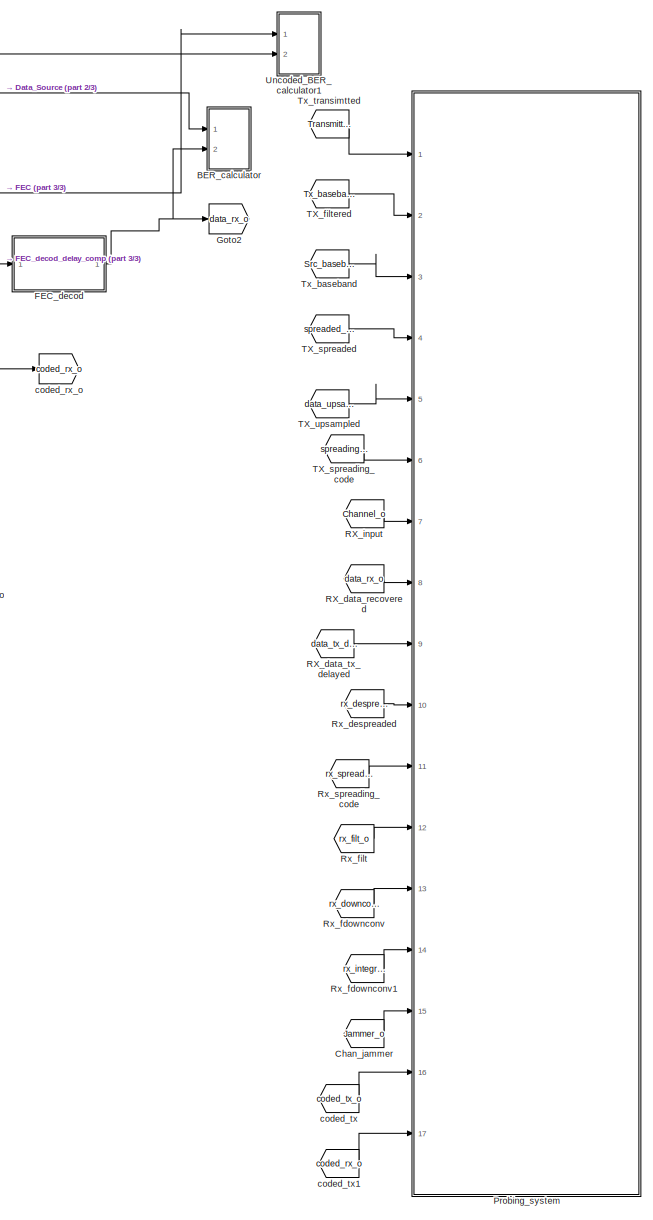
[diagram: root canvas - part 1/3, right side, full height]
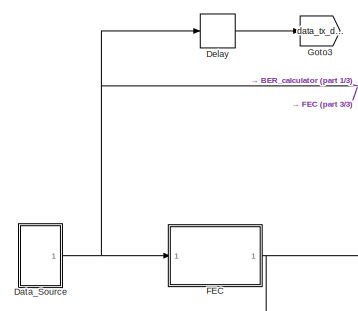
[diagram: root canvas - part 2/3, top left region]
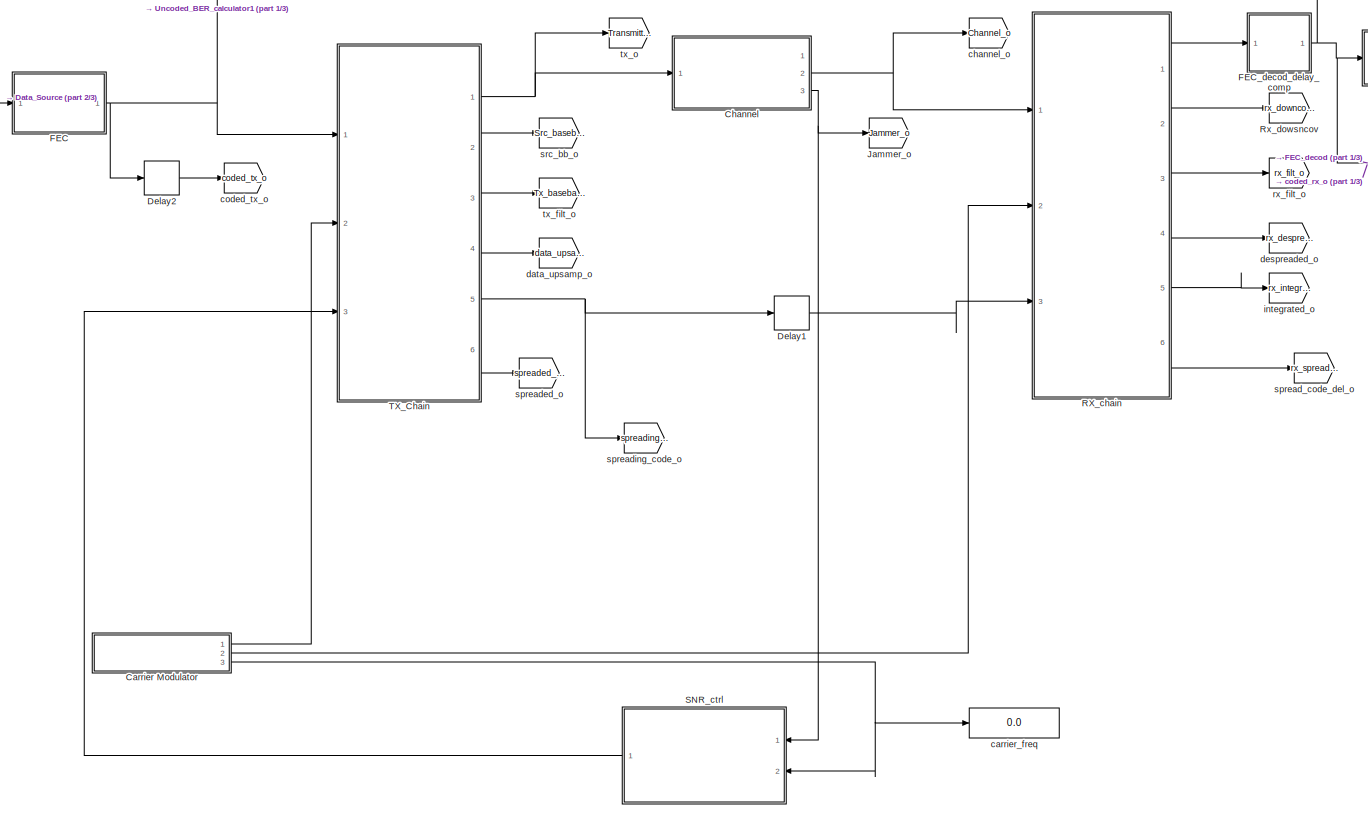
[diagram: root canvas - part 3/3, central region]
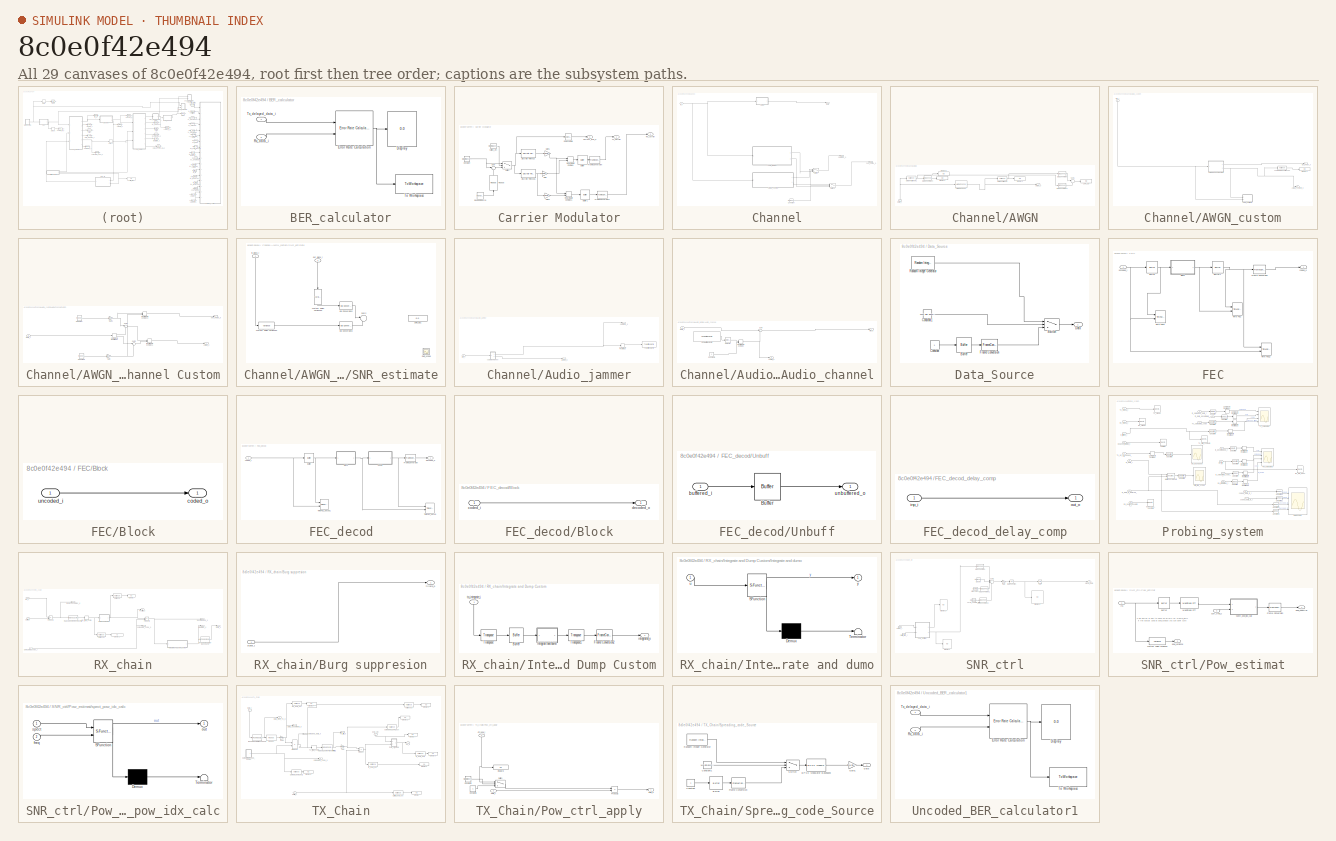
[diagram: thumbnail index - all 29 canvases of the model, root first then tree order]
MODEL slx_8c0e0f42e494
KIND model
CONFIG InitFcn = %if (matlab_sim)==false\n\n%WM_Sim_config_smlnk_standalone;\n\n%end\nif isfield(WM.Sim,'BER_results')\nWM.Sim = rmfield(WM.Sim,{'BER_results'});\nend\nif isfield(WM.Sim,'Uncoded_BER_results')\nWM.Sim = rmfield(WM.Sim,{'Uncoded_BER_results'});\nend
CONFIG StopFcn = if (matlab_sim)==false\nWM.Sim.BER_results=BER_results_simout;\nWM.Sim.Uncoded_BER_results=Uncoded_BER_results_simout;\n%save_data_n_params(WM);\nend\n
BLOCK [SubSystem] BER_calculator
  FunctionWithSeparateData = off
  MaskHideContents = off
  MinAlgLoopOccurrences = off
  Opaque = off
  Ports = [2]
  PropExecContextOutsideSubsystem = off
  RTWSystemCode = Auto
  RequestExecContextInheritance = off
BLOCK [Display] BER_calculator/Display
  Decimation = 1
  Lockdown = off
  Ports = [1]
BLOCK [Reference] BER_calculator/Error Rate Calculation  REF=commsink2/Error Rate
Calculation
  N = WM.Sim.Tx_delay_eq
  PMode = Port
  Ports = [2, 1]
  RsMode2 = off
  SourceBlock = commsink2/Error Rate\nCalculation
  SourceType = Error Rate Calculation
  WsName = ErrorVec
  cp_mode = Entire frame
  maxBits = 1e6
  numErr = 100
  st_delay = WM.Sim.Frame_len
  stop = off
  subframe = []
BLOCK [Inport] BER_calculator/Rx_data_i
  IconDisplay = Port number
  Port = 2
BLOCK [ToWorkspace] BER_calculator/To Workspace
  MaxDataPoints = inf
  Ports = [1]
  SampleTime = -1
  SaveFormat = Timeseries
  VariableName = BER_results_simout
BLOCK [Inport] BER_calculator/Tx_delayed_data_i
  IconDisplay = Port number
BLOCK [SubSystem] Carrier Modulator
  FunctionWithSeparateData = off
  MaskHideContents = off
  MinAlgLoopOccurrences = off
  Opaque = off
  Ports = [0, 3]
  PropExecContextOutsideSubsystem = off
  RTWSystemCode = Auto
  RequestExecContextInheritance = off
BLOCK [Buffer] Carrier Modulator/Buffer
  N = int32(WM.Sim.Frame_len)
  TreatMby1Signals = One channel
BLOCK [Buffer] Carrier Modulator/Buffer1
  N = int32(WM.Sim.Frame_len)
  TreatMby1Signals = One channel
BLOCK [Outport] Carrier Modulator/Carrirer_freq_o
  IconDisplay = Port number
  Port = 3
BLOCK [Constant] Carrier Modulator/Constant
  Value = WM.Sim.Encoder.Carrier_Freq
  VectorParams1D = off
BLOCK [Reference] Carrier Modulator/Discrete-Time VCO  REF=commsynccomp2/Discrete-Time
VCO
  Ac = 1
  Fc = 0
  Kc = 1
  Ph = 0
  Ports = [1, 1]
  SourceBlock = commsynccomp2/Discrete-Time\nVCO
  SourceType = Discrete-Time VCO
  ts = WM.Sim.SampleTimes.Tchannel
BLOCK [Reference] Carrier Modulator/Discrete-Time VCO1  REF=commsynccomp2/Discrete-Time
VCO
  Ac = 1
  Fc = 0
  Kc = 1
  Ph = pi/4
  Ports = [1, 1]
  SourceBlock = commsynccomp2/Discrete-Time\nVCO
  SourceType = Discrete-Time VCO
  ts = WM.Sim.SampleTimes.Tchannel
BLOCK [Reference] Carrier Modulator/Downsample  REF=dspsigops/Downsample
  InputProcessing = Columns as channels (frame based)
  N = int32(WM.Sim.Frame_len)
  Ports = [1, 1]
  RateOptions = Allow multirate processing
  SourceBlock = dspsigops/Downsample
  SourceType = Downsample
  UserDataPersistent = on
  fmode = Maintain input frame size
  ic = 0
  phase = 0
  smode = Allow multirate
BLOCK [FrameConversion] Carrier Modulator/Frame Conversion
  Ports = [1, 1]
BLOCK [FrameConversion] Carrier Modulator/Frame Conversion1
  Ports = [1, 1]
BLOCK [Gain] Carrier Modulator/Gain
  Gain = WM.Sim.Upconverter.SinGain
  OutDataTypeStr = Inherit: Inherit via internal rule
  ParamDataTypeStr = Inherit: Inherit via internal rule
  SaturateOnIntegerOverflow = off
BLOCK [Gain] Carrier Modulator/Gain1
  Gain = WM.Sim.Upconverter.CosGain
  OutDataTypeStr = Inherit: Inherit via internal rule
  ParamDataTypeStr = Inherit: Inherit via internal rule
  SaturateOnIntegerOverflow = off
BLOCK [Gain] Carrier Modulator/Gain2
  Gain = WM.Sim.Upconverter.CosGain
  OutDataTypeStr = Inherit: Inherit via internal rule
  ParamDataTypeStr = Inherit: Inherit via internal rule
  SaturateOnIntegerOverflow = off
BLOCK [Outport] Carrier Modulator/RX_carrier
  IconDisplay = Port number
  Port = 2
BLOCK [Reference] Carrier Modulator/Random Source  REF=dspsrcs4/Random
Source
  CltLength = 12
  DataType = Double
  IsInherit = off
  MaxVal = +WM.Sim.Upconverter.hopping_band/2
  MeanVal = 0
  MinVal = -WM.Sim.Upconverter.hopping_band/2
  NormMethod = Ziggurat
  OutComplex = Real
  Ports = [0, 1]
  RepMode = Specify seed
  SampFrame = 1
  SampMode = Discrete
  SampTime = WM.Sim.SampleTimes.Tchannel*WM.Sim.Upconverter.hopping_div_vact
  SourceBlock = dspsrcs4/Random\nSource
  SourceType = Random Source
  SrcType = Uniform
  UserDataPersistent = on
  VarVal = 1
  rawSeed = WM.Sim.Upconverter.Seed_hopping
BLOCK [RealImagToComplex] Carrier Modulator/Real-Imag to Complex
  Ports = [2, 1]
BLOCK [RealImagToComplex] Carrier Modulator/Real-Imag to Complex1
  Ports = [2, 1]
BLOCK [Reference] Carrier Modulator/Repeat  REF=dspsigops/Repeat
  InputProcessing = Columns as channels (frame based)
  N = WM.Sim.Upconverter.hopping_div_vact
  Ports = [1, 1]
  RateOptions = Allow multirate processing
  SourceBlock = dspsigops/Repeat
  SourceType = Repeat
  UserDataPersistent = on
  ic = 0
  mode = Unused parameter value
BLOCK [Sum] Carrier Modulator/Sum
  IconShape = round
  InputSameDT = off
  Inputs = |++
  OutDataTypeStr = Inherit: Inherit via internal rule
  Ports = [2, 1]
  SaturateOnIntegerOverflow = off
BLOCK [Switch] Carrier Modulator/Switch
  Criteria = u2 > Threshold
  InputSameDT = off
  SaturateOnIntegerOverflow = off
BLOCK [Outport] Carrier Modulator/TX_Carrier
  IconDisplay = Port number
BLOCK [Constant] Carrier Modulator/switch_ctrl
  Value = WM.Sim.Upconverter.hopping_switch
BLOCK [From] Chan_jammer
  GotoTag = Jammer_o
BLOCK [SubSystem] Channel
  FunctionWithSeparateData = off
  MaskHideContents = off
  MinAlgLoopOccurrences = off
  Opaque = off
  Ports = [1, 3]
  PropExecContextOutsideSubsystem = off
  RTWSystemCode = Auto
  RequestExecContextInheritance = off
BLOCK [SubSystem] Channel/AWGN
  FunctionWithSeparateData = off
  MaskHideContents = off
  MinAlgLoopOccurrences = off
  Opaque = off
  Ports = [1, 1]
  PropExecContextOutsideSubsystem = off
  RTWSystemCode = Auto
  RequestExecContextInheritance = off
BLOCK [Reference] Channel/AWGN/ awgn variance  REF=dspstat3/Variance
  InputProcessing = Columns as channels (frame based)
  LockScale = off
  Ports = [1, 1]
  SourceBlock = dspstat3/Variance
  SourceType = Variance
  UserDataPersistent = on
  accumFracLength = 30
  accumMode = Same as input-squared product
  accumWordLength = 32
  additionalParams = off
  allowOverrides = on
  dimension = 1
  directionMode = Each column
  memoryFracLength = 30
  memoryMode = Same as input-squared product
  memoryWordLength = 32
  outputFracLength = 30
  outputMode = Same as input-squared product
  outputWordLength = 32
  overflowMode = off
  prodOutputFracLength = 30
  prodOutputMode = Same as input
  prodOutputWordLength = 32
  reset_popup = None
  roiEnable = off
  roiFlag = off
  roiOutput = Individual statistics for each ROI
  roiPortion = Entire ROI
  roiType = Rectangles
  roundingMode = Floor
  run = on
  treatSBRowAsCol = on
BLOCK [Reference] Channel/AWGN/ awgn variance1  REF=dspstat3/Variance
  InputProcessing = Columns as channels (frame based)
  LockScale = off
  Ports = [1, 1]
  SourceBlock = dspstat3/Variance
  SourceType = Variance
  UserDataPersistent = on
  accumFracLength = 30
  accumMode = Same as input-squared product
  accumWordLength = 32
  additionalParams = off
  allowOverrides = on
  dimension = 1
  directionMode = Each column
  memoryFracLength = 30
  memoryMode = Same as input-squared product
  memoryWordLength = 32
  outputFracLength = 30
  outputMode = Same as input-squared product
  outputWordLength = 32
  overflowMode = off
  prodOutputFracLength = 30
  prodOutputMode = Same as input
  prodOutputWordLength = 32
  reset_popup = None
  roiEnable = off
  roiFlag = off
  roiOutput = Individual statistics for each ROI
  roiPortion = Entire ROI
  roiType = Rectangles
  roundingMode = Floor
  run = on
  treatSBRowAsCol = on
BLOCK [Reference] Channel/AWGN/AWGN Channel  REF=commchan3/AWGN
Channel
  EbNodB = WM.Sim.Channel.Eb_N0_dB
  EsNodB = 10
  InputProcessing = Columns as channels (frame based)
  Ports = [1, 1]
  Ps = 0.94
  SNRdB = 10
  SourceBlock = commchan3/AWGN\nChannel
  SourceType = AWGN Channel
  Tsym = WM.Sim.Encoder.Source_Ts
  UserDataPersistent = on
  bitsPerSym = WM.Sim.bit_x_symbol
  noiseMode = Signal to noise ratio  (Eb/No)
  seed = WM.Sim.Channel.AWGN_Custom.seed_noise_real
  variance = 1
BLOCK [Outport] Channel/AWGN/AWGN_o
  IconDisplay = Port number
BLOCK [Display] Channel/AWGN/Display2
  Decimation = 1
  Lockdown = off
  Ports = [1]
BLOCK [Display] Channel/AWGN/Display4
  Decimation = 1
  Lockdown = off
  Ports = [1]
BLOCK [Display] Channel/AWGN/Display5
  Decimation = 1
  Lockdown = off
  Ports = [1]
BLOCK [Display] Channel/AWGN/SNR_db
  Decimation = 1
  Lockdown = off
  Ports = [1]
BLOCK [Sum] Channel/AWGN/Sum1
  IconShape = round
  InputSameDT = off
  Inputs = |-+
  OutDataTypeStr = Inherit: Inherit via internal rule
  Ports = [2, 1]
  SaturateOnIntegerOverflow = off
BLOCK [Reference] Channel/AWGN/dB Conversion  REF=dspmathops/dB Conversion
  Ports = [1, 1]
  R = 1
  SourceBlock = dspmathops/dB Conversion
  SourceType = dB Conversion
  dBtype = dB
  fuzz = off
  intype = Power
BLOCK [Reference] Channel/AWGN/dB Conversion1  REF=dspmathops/dB Conversion
  Ports = [1, 1]
  R = 1
  SourceBlock = dspmathops/dB Conversion
  SourceType = dB Conversion
  dBtype = dB
  fuzz = off
  intype = Power
BLOCK [Reference] Channel/AWGN/dB Conversion4  REF=dspmathops/dB Conversion
  Ports = [1, 1]
  R = 1
  SourceBlock = dspmathops/dB Conversion
  SourceType = dB Conversion
  dBtype = dB
  fuzz = off
  intype = Power
BLOCK [Inport] Channel/AWGN/data_i
  IconDisplay = Port number
BLOCK [SubSystem] Channel/AWGN_custom
  FunctionWithSeparateData = off
  MaskHideContents = off
  MinAlgLoopOccurrences = off
  Opaque = off
  Ports = [1, 2]
  PropExecContextOutsideSubsystem = off
  RTWSystemCode = Auto
  RequestExecContextInheritance = off
BLOCK [SubSystem] Channel/AWGN_custom/AWGN Channel Custom
  FunctionWithSeparateData = off
  MaskHideContents = off
  MinAlgLoopOccurrences = off
  Opaque = off
  Ports = [1, 2]
  PropExecContextOutsideSubsystem = off
  RTWSystemCode = Auto
  RequestExecContextInheritance = off
BLOCK [Outport] Channel/AWGN_custom/AWGN Channel Custom/AWGN_o
  IconDisplay = Port number
  Port = 2
BLOCK [ComplexToRealImag] Channel/AWGN_custom/AWGN Channel Custom/Complex to Real-Imag1
  Ports = [1, 2]
BLOCK [Gain] Channel/AWGN_custom/AWGN Channel Custom/Gain
  Gain = WM.Sim.Channel.AWGN_Custom.Noise_amp_i
  OutDataTypeStr = Inherit: Inherit via internal rule
  ParamDataTypeStr = Inherit: Inherit via internal rule
  SaturateOnIntegerOverflow = off
BLOCK [Gain] Channel/AWGN_custom/AWGN Channel Custom/Gain1
  Gain = WM.Sim.Channel.AWGN_Custom.Noise_amp_r
  OutDataTypeStr = Inherit: Inherit via internal rule
  ParamDataTypeStr = Inherit: Inherit via internal rule
  SaturateOnIntegerOverflow = off
BLOCK [Reference] Channel/AWGN_custom/AWGN Channel Custom/Noise imag  REF=dspsrcs4/Random
Source
  CltLength = 12
  DataType = Double
  IsInherit = off
  MaxVal = 1
  MeanVal = 0
  MinVal = 0
  NormMethod = Ziggurat
  OutComplex = Real
  Ports = [0, 1]
  RepMode = Specify seed
  SampFrame = int32(WM.Sim.Frame_len)
  SampMode = Discrete
  SampTime = WM.Sim.SampleTimes.Tchannel
  SourceBlock = dspsrcs4/Random\nSource
  SourceType = Random Source
  SrcType = Gaussian
  UserDataPersistent = on
  VarVal = 1
  rawSeed = WM.Sim.Channel.AWGN_Custom.seed_noise_imag
BLOCK [Reference] Channel/AWGN_custom/AWGN Channel Custom/Noise real  REF=dspsrcs4/Random
Source
  CltLength = 12
  DataType = Double
  IsInherit = off
  MaxVal = 1
  MeanVal = 0
  MinVal = 0
  NormMethod = Ziggurat
  OutComplex = Real
  Ports = [0, 1]
  RepMode = Specify seed
  SampFrame = int32(WM.Sim.Frame_len)
  SampMode = Discrete
  SampTime = WM.Sim.SampleTimes.Tchannel
  SourceBlock = dspsrcs4/Random\nSource
  SourceType = Random Source
  SrcType = Gaussian
  UserDataPersistent = on
  VarVal = 1
  rawSeed = WM.Sim.Channel.AWGN_Custom.seed_noise_real
BLOCK [RealImagToComplex] Channel/AWGN_custom/AWGN Channel Custom/Real-Imag to Complex1
  Ports = [2, 1]
BLOCK [RealImagToComplex] Channel/AWGN_custom/AWGN Channel Custom/Real-Imag to Complex2
  Ports = [2, 1]
BLOCK [Sum] Channel/AWGN_custom/AWGN Channel Custom/Sum1
  IconShape = round
  InputSameDT = off
  Inputs = |++
  OutDataTypeStr = Inherit: Inherit via internal rule
  Ports = [2, 1]
  SaturateOnIntegerOverflow = off
BLOCK [Sum] Channel/AWGN_custom/AWGN Channel Custom/Sum2
  IconShape = round
  InputSameDT = off
  Inputs = |++
  OutDataTypeStr = Inherit: Inherit via internal rule
  Ports = [2, 1]
  SaturateOnIntegerOverflow = off
BLOCK [Inport] Channel/AWGN_custom/AWGN Channel Custom/data_i
  IconDisplay = Port number
BLOCK [Outport] Channel/AWGN_custom/AWGN Channel Custom/only_noise_o
  IconDisplay = Port number
BLOCK [Outport] Channel/AWGN_custom/AWGN_custom_o
  IconDisplay = Port number
BLOCK [Display] Channel/AWGN_custom/Display1
  Decimation = 1
  Lockdown = off
  Ports = [1]
BLOCK [SubSystem] Channel/AWGN_custom/SNR_estimate
  FunctionWithSeparateData = off
  MaskHideContents = off
  MinAlgLoopOccurrences = off
  Opaque = off
  Ports = [2]
  PropExecContextOutsideSubsystem = off
  RTWSystemCode = Auto
  RequestExecContextInheritance = off
BLOCK [Display] Channel/AWGN_custom/SNR_estimate/SNR_db1
  Decimation = 1
  Lockdown = off
  Ports = [1]
BLOCK [Scope] Channel/AWGN_custom/SNR_estimate/SNR_scope
  DataFormat = StructureWithTime
  Floating = off
  MaxDataPoints = WM.Sim.SNR_Calc.Scope.Data_history_len
  NumInputPorts = 1
  Ports = [1]
  SampleTime = 0
  SaveName = ScopeData4
  ShowLegends = off
  YMax = -20.7587
  YMin = -20.7608
BLOCK [Sum] Channel/AWGN_custom/SNR_estimate/Sum2
  IconShape = round
  InputSameDT = off
  Inputs = |-+
  OutDataTypeStr = Inherit: Inherit via internal rule
  Ports = [2, 1]
  SaturateOnIntegerOverflow = off
BLOCK [Reference] Channel/AWGN_custom/SNR_estimate/custom awgn variance2  REF=dspstat3/Variance
  InputProcessing = Columns as channels (frame based)
  LockScale = off
  Ports = [1, 1]
  SourceBlock = dspstat3/Variance
  SourceType = Variance
  UserDataPersistent = on
  accumFracLength = 30
  accumMode = Same as input-squared product
  accumWordLength = 32
  additionalParams = off
  allowOverrides = on
  dimension = 1
  directionMode = Each column
  memoryFracLength = 30
  memoryMode = Same as input-squared product
  memoryWordLength = 32
  outputFracLength = 30
  outputMode = Same as input-squared product
  outputWordLength = 32
  overflowMode = off
  prodOutputFracLength = 30
  prodOutputMode = Same as input
  prodOutputWordLength = 32
  reset_popup = None
  roiEnable = off
  roiFlag = off
  roiOutput = Individual statistics for each ROI
  roiPortion = Entire ROI
  roiType = Rectangles
  roundingMode = Floor
  run = on
  treatSBRowAsCol = on
BLOCK [Reference] Channel/AWGN_custom/SNR_estimate/custom awgn variance3  REF=dspstat3/Variance
  InputProcessing = Columns as channels (frame based)
  LockScale = off
  Ports = [1, 1]
  SourceBlock = dspstat3/Variance
  SourceType = Variance
  UserDataPersistent = on
  accumFracLength = 30
  accumMode = Same as input-squared product
  accumWordLength = 32
  additionalParams = off
  allowOverrides = on
  dimension = 1
  directionMode = Each column
  memoryFracLength = 30
  memoryMode = Same as input-squared product
  memoryWordLength = 32
  outputFracLength = 30
  outputMode = Same as input-squared product
  outputWordLength = 32
  overflowMode = off
  prodOutputFracLength = 30
  prodOutputMode = Same as input
  prodOutputWordLength = 32
  reset_popup = None
  roiEnable = off
  roiFlag = off
  roiOutput = Individual statistics for each ROI
  roiPortion = Entire ROI
  roiType = Rectangles
  roundingMode = Floor
  run = on
  treatSBRowAsCol = on
BLOCK [Reference] Channel/AWGN_custom/SNR_estimate/dB Conversion2  REF=dspmathops/dB Conversion
  Ports = [1, 1]
  R = 1
  SourceBlock = dspmathops/dB Conversion
  SourceType = dB Conversion
  dBtype = dB
  fuzz = off
  intype = Power
BLOCK [Reference] Channel/AWGN_custom/SNR_estimate/dB Conversion3  REF=dspmathops/dB Conversion
  Ports = [1, 1]
  R = 1
  SourceBlock = dspmathops/dB Conversion
  SourceType = dB Conversion
  dBtype = dB
  fuzz = off
  intype = Power
BLOCK [Inport] Channel/AWGN_custom/SNR_estimate/in_block_i
  IconDisplay = Port number
  Port = 2
BLOCK [Inport] Channel/AWGN_custom/SNR_estimate/out_block_i
  IconDisplay = Port number
BLOCK [Reference] Channel/AWGN_custom/custom awgn variance1  REF=dspstat3/Variance
  InputProcessing = Columns as channels (frame based)
  LockScale = off
  Ports = [1, 1]
  SourceBlock = dspstat3/Variance
  SourceType = Variance
  UserDataPersistent = on
  accumFracLength = 30
  accumMode = Same as input-squared product
  accumWordLength = 32
  additionalParams = off
  allowOverrides = on
  dimension = 1
  directionMode = Each column
  memoryFracLength = 30
  memoryMode = Same as input-squared product
  memoryWordLength = 32
  outputFracLength = 30
  outputMode = Same as input-squared product
  outputWordLength = 32
  overflowMode = off
  prodOutputFracLength = 30
  prodOutputMode = Same as input
  prodOutputWordLength = 32
  reset_popup = None
  roiEnable = off
  roiFlag = off
  roiOutput = Individual statistics for each ROI
  roiPortion = Entire ROI
  roiType = Rectangles
  roundingMode = Floor
  run = on
  treatSBRowAsCol = on
BLOCK [Outport] Channel/AWGN_custom/just_noise_o
  IconDisplay = Port number
  Port = 2
BLOCK [Inport] Channel/AWGN_custom/sig_i
  IconDisplay = Port number
BLOCK [SubSystem] Channel/Audio_jammer
  FunctionWithSeparateData = off
  MaskHideContents = off
  MinAlgLoopOccurrences = off
  Opaque = off
  Ports = [1, 2]
  PropExecContextOutsideSubsystem = off
  RTWSystemCode = Auto
  RequestExecContextInheritance = off
BLOCK [SubSystem] Channel/Audio_jammer/Audio_channel
  FunctionWithSeparateData = off
  MaskHideContents = off
  MinAlgLoopOccurrences = off
  Opaque = off
  Ports = [1, 2]
  PropExecContextOutsideSubsystem = off
  RTWSystemCode = Auto
  RequestExecContextInheritance = off
BLOCK [Constant] Channel/Audio_jammer/Audio_channel/Constant1
  SampleTime = WM.Sim.Frame_len/WM.Sim.Fs_audio
  Value = 0
BLOCK [Reference] Channel/Audio_jammer/Audio_channel/From Multimedia File  REF=dspvision/From Multimedia File
  Ports = [0, 1]
  SourceBlock = dspvision/From Multimedia File
  SourceType = From Multimedia File
  audioDataType = double
  audioFrameSize = int32(WM.Sim.Frame_len)
  colorVideoFormat = Separate color signals
  computeAudioFrameSize = off
  dataOrg = Column-major
  fourcc = RGB
  inheritSampleTime = on
  inputFilename = ./audio_test/Balmorhea - Days.wav
  isIntensityVideo = off
  loop = on
  noAudioOutput = off
  numPlays = 1
  outSamplingMode = Frame based
  outputEOF = off
  outputStreams = Audio only
  userDefinedSampleTime = 1/30
  videoDataType = single
BLOCK [Outport] Channel/Audio_jammer/Audio_channel/Jamm_o
  IconDisplay = Port number
  Port = 2
BLOCK [RealImagToComplex] Channel/Audio_jammer/Audio_channel/Real-Imag to Complex
  Ports = [2, 1]
BLOCK [Selector] Channel/Audio_jammer/Audio_channel/Selector
  IndexOptions = Select all,Index vector (dialog)
  Indices = [1],1
  InputPortWidth = 2
  NumberOfDimensions = 2
  OutputSizes = 1,1
  Ports = [1, 1]
BLOCK [Sum] Channel/Audio_jammer/Audio_channel/Sum
  IconShape = round
  InputSameDT = off
  Inputs = |++
  OutDataTypeStr = Inherit: Inherit via internal rule
  Ports = [2, 1]
  SaturateOnIntegerOverflow = off
BLOCK [Inport] Channel/Audio_jammer/Audio_channel/data_i
  IconDisplay = Port number
BLOCK [Outport] Channel/Audio_jammer/Audio_channel/mix_o
  IconDisplay = Port number
BLOCK [ComplexToRealImag] Channel/Audio_jammer/Complex to Real-Imag
  Ports = [1, 2]
BLOCK [Outport] Channel/Audio_jammer/Jammed_o
  IconDisplay = Port number
BLOCK [Reference] Channel/Audio_jammer/To Multimedia File  REF=dspvision/To Multimedia File
  Ports = [1]
  SourceBlock = dspvision/To Multimedia File
  SourceType = To Multimedia File
  audioCompressor = None (uncompressed)
  audioDatatype = 16-bit integer
  fileType = WAV
  fourcc = RGB
  imagePorts = Separate color signals
  outputFilename = ./audio_test/jammed.wav
  streamSelection = Audio only
  videoCompressor = None (uncompressed)
BLOCK [Outport] Channel/Audio_jammer/jammer_o
  IconDisplay = Port number
  Port = 2
BLOCK [Inport] Channel/Audio_jammer/sig_i
  IconDisplay = Port number
BLOCK [Constant] Channel/Constant
  SampleTime = WM.Sim.Frame_len/WM.Sim.Fs_audio
  Value = WM.Sim.Channel.Switch
BLOCK [Inport] Channel/In1
  IconDisplay = Port number
BLOCK [Outport] Channel/Jammed_o
  IconDisplay = Port number
  Port = 2
BLOCK [Outport] Channel/Just_noise_o
  IconDisplay = Port number
  Port = 3
BLOCK [Outport] Channel/Out1
  IconDisplay = Port number
BLOCK [Switch] Channel/Switch
  Criteria = u2 > Threshold
  InputSameDT = off
  SaturateOnIntegerOverflow = off
BLOCK [Switch] Channel/Switch1
  Criteria = u2 > Threshold
  InputSameDT = off
  SaturateOnIntegerOverflow = off
BLOCK [SubSystem] Data_Source
  FunctionWithSeparateData = off
  MaskHideContents = off
  MinAlgLoopOccurrences = off
  Opaque = off
  Ports = [0, 1]
  PropExecContextOutsideSubsystem = off
  RTWSystemCode = Auto
  RequestExecContextInheritance = off
BLOCK [Buffer] Data_Source/Buffer
  N = WM.Sim.Frame_len
  TreatMby1Signals = One channel
BLOCK [Constant] Data_Source/Constant
  FramePeriod = WM.Sim.SampleTimes.Tsource
  SampleTime = WM.Sim.SampleTimes.Tsource
  VectorParams1D = off
BLOCK [Constant] Data_Source/Constant1
  FramePeriod = WM.Sim.SampleTimes.Tspreader
  Value = WM.Sim.Encoder.Source.Switch
  VectorParams1D = off
BLOCK [Outport] Data_Source/Data
  IconDisplay = Port number
BLOCK [FrameConversion] Data_Source/Frame Conversion
  Ports = [1, 1]
BLOCK [Reference] Data_Source/Random Integer Generator  REF=commrandsrc2/Random Integer
Generator
  Ports = [0, 1]
  SourceBlock = commrandsrc2/Random Integer\nGenerator
  SourceType = Random Integer Generator
  Ts = WM.Sim.SampleTimes.Tsource
  frameBased = on
  mul = WM.Sim.order_M
  orient = off
  outDataType = double
  sampPerFrame = WM.Sim.Frame_len
  seed = WM.Sim.seed_rand_msg
BLOCK [Switch] Data_Source/Switch
  Criteria = u2 > Threshold
  InputSameDT = off
  SaturateOnIntegerOverflow = off
BLOCK [Delay] Delay
  DelayLength = WM.Sim.Tx_delay_eq
  InputPortMap = u0
  InputProcessing = Columns as channels (frame based)
  Ports = [1, 1]
BLOCK [Delay] Delay1
  DelayLength = WM.Sim.Channel.Code_delay
  InputPortMap = u0
  InputProcessing = Columns as channels (frame based)
  Ports = [1, 1]
BLOCK [Delay] Delay2
  DelayLength = WM.Sim.Tx_delay_eq_coderate
  InputPortMap = u0
  InputProcessing = Columns as channels (frame based)
  Ports = [1, 1]
BLOCK [SubSystem] FEC
  FunctionWithSeparateData = off
  MaskHideContents = off
  MinAlgLoopOccurrences = off
  Opaque = off
  Ports = [1, 1]
  PropExecContextOutsideSubsystem = off
  RTWSystemCode = Auto
  RequestExecContextInheritance = off
BLOCK [SubSystem] FEC/Block
  FunctionWithSeparateData = off
  MaskHideContents = off
  MinAlgLoopOccurrences = off
  Opaque = off
  Ports = [1, 1]
  PropExecContextOutsideSubsystem = off
  RTWSystemCode = Auto
  RequestExecContextInheritance = off
BLOCK [Outport] FEC/Block/coded_o
  IconDisplay = Port number
BLOCK [Inport] FEC/Block/uncoded_i
  IconDisplay = Port number
BLOCK [Buffer] FEC/Buffer
  N = WM.Sim.Message_length
  TreatMby1Signals = One channel
BLOCK [Buffer] FEC/Buffer1
  N = WM.Sim.Frame_len
  TreatMby1Signals = One channel
BLOCK [FrameConversion] FEC/Frame Conversion
  Ports = [1, 1]
BLOCK [TimeScope] FEC/Time FEC
  CloseFcn = scopeextensions.ScopeBlock.callback(gcbh, 'onBlockClose');
  CopyFcn = scopeextensions.ScopeBlock.callback(gcbh, 'onBlockCopy', gcbh);
  DefaultConfigurationName = spbscopes.TimeScopeBlockCfg
  DeleteFcn = scopeextensions.ScopeBlock.callback(gcbh, 'onBlockDelete');
  NameChangeFcn = scopeextensions.ScopeBlock.callback(gcbh, 'onBlockRename');
  NumInputPorts = 2
  Ports = [2]
  PreDeleteFcn = scopeextensions.ScopeBlock.callback(gcbh, 'onBlockPreDelete');
  PreSaveFcn = scopeextensions.ScopeBlock.callback(gcbh, 'onModelSave');
  UserDataPersistent = on
BLOCK [TimeScope] FEC/Time FEC1
  CloseFcn = scopeextensions.ScopeBlock.callback(gcbh, 'onBlockClose');
  CopyFcn = scopeextensions.ScopeBlock.callback(gcbh, 'onBlockCopy', gcbh);
  DefaultConfigurationName = spbscopes.TimeScopeBlockCfg
  DeleteFcn = scopeextensions.ScopeBlock.callback(gcbh, 'onBlockDelete');
  NameChangeFcn = scopeextensions.ScopeBlock.callback(gcbh, 'onBlockRename');
  NumInputPorts = 2
  Ports = [2]
  PreDeleteFcn = scopeextensions.ScopeBlock.callback(gcbh, 'onBlockPreDelete');
  PreSaveFcn = scopeextensions.ScopeBlock.callback(gcbh, 'onModelSave');
  UserDataPersistent = on
BLOCK [TimeScope] FEC/Time FEC2
  CloseFcn = scopeextensions.ScopeBlock.callback(gcbh, 'onBlockClose');
  CopyFcn = scopeextensions.ScopeBlock.callback(gcbh, 'onBlockCopy', gcbh);
  DefaultConfigurationName = spbscopes.TimeScopeBlockCfg
  DeleteFcn = scopeextensions.ScopeBlock.callback(gcbh, 'onBlockDelete');
  NameChangeFcn = scopeextensions.ScopeBlock.callback(gcbh, 'onBlockRename');
  NumInputPorts = 2
  Ports = [2]
  PreDeleteFcn = scopeextensions.ScopeBlock.callback(gcbh, 'onBlockPreDelete');
  PreSaveFcn = scopeextensions.ScopeBlock.callback(gcbh, 'onModelSave');
  UserDataPersistent = on
BLOCK [Outport] FEC/coded_o
  IconDisplay = Port number
BLOCK [Inport] FEC/uncoded_i
  IconDisplay = Port number
BLOCK [SubSystem] FEC_decod
  FunctionWithSeparateData = off
  MaskHideContents = off
  MinAlgLoopOccurrences = off
  Opaque = off
  Ports = [1, 1]
  PropExecContextOutsideSubsystem = off
  RTWSystemCode = Auto
  RequestExecContextInheritance = off
BLOCK [SubSystem] FEC_decod/Block
  FunctionWithSeparateData = off
  MaskHideContents = off
  MinAlgLoopOccurrences = off
  Opaque = off
  Ports = [1, 1]
  PropExecContextOutsideSubsystem = off
  RTWSystemCode = Auto
  RequestExecContextInheritance = off
BLOCK [Inport] FEC_decod/Block/coded_i
  IconDisplay = Port number
BLOCK [Outport] FEC_decod/Block/decoded_o
  IconDisplay = Port number
BLOCK [Buffer] FEC_decod/Buffer
  N = WM.Sim.Codeword_length
  TreatMby1Signals = One channel
BLOCK [FrameConversion] FEC_decod/Frame Conversion
  Ports = [1, 1]
BLOCK [TimeScope] FEC_decod/Time FEC_decod
  CloseFcn = scopeextensions.ScopeBlock.callback(gcbh, 'onBlockClose');
  CopyFcn = scopeextensions.ScopeBlock.callback(gcbh, 'onBlockCopy', gcbh);
  DefaultConfigurationName = spbscopes.TimeScopeBlockCfg
  DeleteFcn = scopeextensions.ScopeBlock.callback(gcbh, 'onBlockDelete');
  NameChangeFcn = scopeextensions.ScopeBlock.callback(gcbh, 'onBlockRename');
  NumInputPorts = 2
  Ports = [2]
  PreDeleteFcn = scopeextensions.ScopeBlock.callback(gcbh, 'onBlockPreDelete');
  PreSaveFcn = scopeextensions.ScopeBlock.callback(gcbh, 'onModelSave');
  UserDataPersistent = on
BLOCK [TimeScope] FEC_decod/Time FEC_decod1
  CloseFcn = scopeextensions.ScopeBlock.callback(gcbh, 'onBlockClose');
  CopyFcn = scopeextensions.ScopeBlock.callback(gcbh, 'onBlockCopy', gcbh);
  DefaultConfigurationName = spbscopes.TimeScopeBlockCfg
  DeleteFcn = scopeextensions.ScopeBlock.callback(gcbh, 'onBlockDelete');
  NameChangeFcn = scopeextensions.ScopeBlock.callback(gcbh, 'onBlockRename');
  NumInputPorts = 2
  Ports = [2]
  PreDeleteFcn = scopeextensions.ScopeBlock.callback(gcbh, 'onBlockPreDelete');
  PreSaveFcn = scopeextensions.ScopeBlock.callback(gcbh, 'onModelSave');
  UserDataPersistent = on
BLOCK [SubSystem] FEC_decod/Unbuff
  FunctionWithSeparateData = off
  MaskHideContents = off
  MinAlgLoopOccurrences = off
  Opaque = off
  Ports = [1, 1]
  PropExecContextOutsideSubsystem = off
  RTWSystemCode = Auto
  RequestExecContextInheritance = off
BLOCK [Buffer] FEC_decod/Unbuff/Buffer
  N = WM.Sim.Frame_len
  TreatMby1Signals = One channel
BLOCK [Inport] FEC_decod/Unbuff/buffered_i
  IconDisplay = Port number
BLOCK [Outport] FEC_decod/Unbuff/unbuffered_o
  IconDisplay = Port number
BLOCK [Inport] FEC_decod/coded_i
  IconDisplay = Port number
BLOCK [Outport] FEC_decod/decoded_o
  IconDisplay = Port number
BLOCK [SubSystem] FEC_decod_delay_comp
  FunctionWithSeparateData = off
  MaskHideContents = off
  MinAlgLoopOccurrences = off
  Opaque = off
  Ports = [1, 1]
  PropExecContextOutsideSubsystem = off
  RTWSystemCode = Auto
  RequestExecContextInheritance = off
BLOCK [Inport] FEC_decod_delay_comp/inp_i
  IconDisplay = Port number
BLOCK [Outport] FEC_decod_delay_comp/out_o
  IconDisplay = Port number
BLOCK [Goto] Goto2
  GotoTag = data_rx_o
BLOCK [Goto] Goto3
  GotoTag = data_tx_delayed_o
BLOCK [Goto] Jammer_o
  GotoTag = Jammer_o
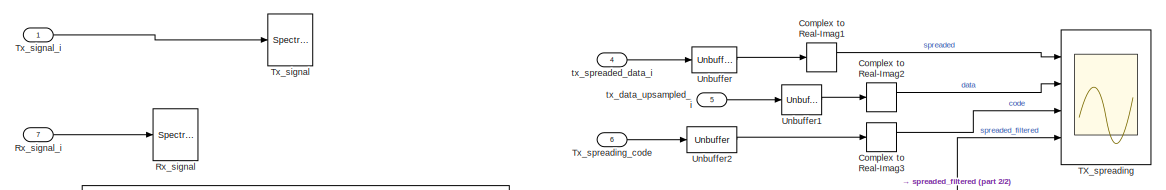
[diagram: Probing_system - part 1/2, full width, top band]
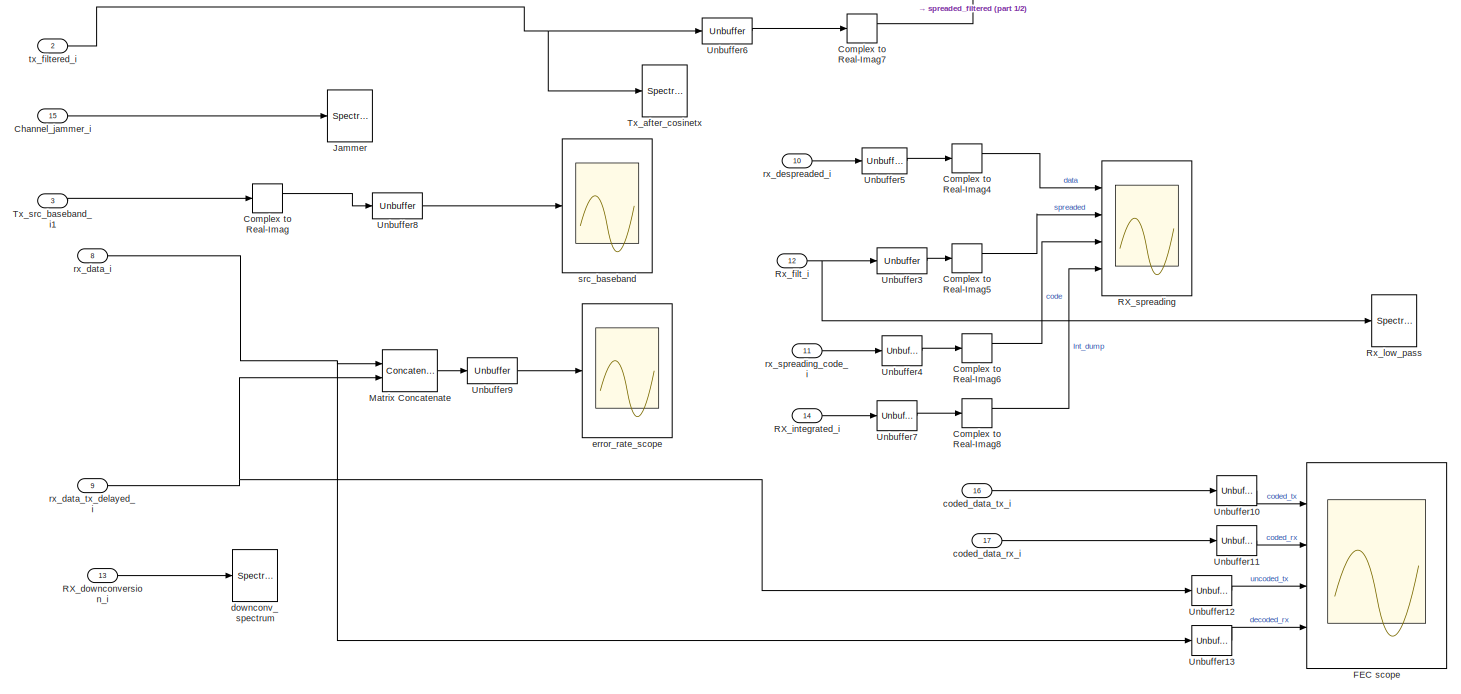
[diagram: Probing_system - part 2/2, most of the canvas]
BLOCK [SubSystem] Probing_system
  FunctionWithSeparateData = off
  MaskHideContents = off
  MinAlgLoopOccurrences = off
  Opaque = off
  Ports = [17]
  PropExecContextOutsideSubsystem = off
  RTWSystemCode = Auto
  RequestExecContextInheritance = off
BLOCK [Inport] Probing_system/Channel_jammer_i
  IconDisplay = Port number
  Port = 15
BLOCK [ComplexToRealImag] Probing_system/Complex to Real-Imag
  Ports = [1, 2]
BLOCK [ComplexToRealImag] Probing_system/Complex to Real-Imag1
  Ports = [1, 2]
BLOCK [ComplexToRealImag] Probing_system/Complex to Real-Imag2
  Ports = [1, 2]
BLOCK [ComplexToRealImag] Probing_system/Complex to Real-Imag3
  Ports = [1, 2]
BLOCK [ComplexToRealImag] Probing_system/Complex to Real-Imag4
  Ports = [1, 2]
BLOCK [ComplexToRealImag] Probing_system/Complex to Real-Imag5
  Ports = [1, 2]
BLOCK [ComplexToRealImag] Probing_system/Complex to Real-Imag6
  Ports = [1, 2]
BLOCK [ComplexToRealImag] Probing_system/Complex to Real-Imag7
  Ports = [1, 2]
BLOCK [ComplexToRealImag] Probing_system/Complex to Real-Imag8
  Ports = [1, 2]
BLOCK [Scope] Probing_system/FEC scope
  DataFormat = StructureWithTime
  Floating = off
  LimitDataPoints = off
  NumInputPorts = 4
  Ports = [4]
  SampleTime = 0
  SaveName = ScopeData6
  ShowLegends = off
  YMax = 5~5~5~5
  YMin = -5~-5~-5~-5
  ZoomMode = xonly
BLOCK [SpectrumAnalyzer] Probing_system/Jammer
  CloseFcn = scopeextensions.ScopeBlock.callback(gcbh, 'onBlockClose');
  CopyFcn = scopeextensions.ScopeBlock.callback(gcbh, 'onBlockCopy', gcbh);
  DeleteFcn = scopeextensions.ScopeBlock.callback(gcbh, 'onBlockDelete');
  NameChangeFcn = scopeextensions.ScopeBlock.callback(gcbh, 'onBlockRename');
  Ports = [1]
  PreDeleteFcn = scopeextensions.ScopeBlock.callback(gcbh, 'onBlockPreDelete');
  PreSaveFcn = scopeextensions.ScopeBlock.callback(gcbh, 'onModelSave');
  UserDataPersistent = on
BLOCK [Concatenate] Probing_system/Matrix Concatenate
  ConcatenateDimension = 2
  Mode = Multidimensional array
  Ports = [2, 1]
BLOCK [Inport] Probing_system/RX_downconversion_i
  IconDisplay = Port number
  Port = 13
BLOCK [Inport] Probing_system/RX_integrated_i
  IconDisplay = Port number
  Port = 14
BLOCK [Scope] Probing_system/RX_spreading
  DataFormat = StructureWithTime
  Floating = off
  MaxDataPoints = WM.Sim.Probe_system.RX_spreading.data_history_len
  NumInputPorts = 4
  Ports = [4]
  SampleTime = 0
  SaveName = ScopeData3
  ShowLegends = off
  YMax = 0.02~0.025~1~1750
  YMin = -0.0225~-0.025~-1~-1000
  ZoomMode = xonly
BLOCK [Inport] Probing_system/Rx_filt_i
  IconDisplay = Port number
  Port = 12
BLOCK [SpectrumAnalyzer] Probing_system/Rx_low_pass
  CloseFcn = scopeextensions.ScopeBlock.callback(gcbh, 'onBlockClose');
  CopyFcn = scopeextensions.ScopeBlock.callback(gcbh, 'onBlockCopy', gcbh);
  DeleteFcn = scopeextensions.ScopeBlock.callback(gcbh, 'onBlockDelete');
  NameChangeFcn = scopeextensions.ScopeBlock.callback(gcbh, 'onBlockRename');
  Ports = [1]
  PreDeleteFcn = scopeextensions.ScopeBlock.callback(gcbh, 'onBlockPreDelete');
  PreSaveFcn = scopeextensions.ScopeBlock.callback(gcbh, 'onModelSave');
  UserDataPersistent = on
BLOCK [SpectrumAnalyzer] Probing_system/Rx_signal
  CloseFcn = scopeextensions.ScopeBlock.callback(gcbh, 'onBlockClose');
  CopyFcn = scopeextensions.ScopeBlock.callback(gcbh, 'onBlockCopy', gcbh);
  DeleteFcn = scopeextensions.ScopeBlock.callback(gcbh, 'onBlockDelete');
  NameChangeFcn = scopeextensions.ScopeBlock.callback(gcbh, 'onBlockRename');
  Ports = [1]
  PreDeleteFcn = scopeextensions.ScopeBlock.callback(gcbh, 'onBlockPreDelete');
  PreSaveFcn = scopeextensions.ScopeBlock.callback(gcbh, 'onModelSave');
  UserDataPersistent = on
BLOCK [Inport] Probing_system/Rx_signal_i
  IconDisplay = Port number
  Port = 7
BLOCK [Scope] Probing_system/TX_spreading
  DataFormat = StructureWithTime
  Floating = off
  NumInputPorts = 4
  Ports = [4]
  SampleTime = 0
  SaveName = ScopeData2
  ShowLegends = off
  YMax = 5~5~5~5
  YMin = -5~-5~-5~-5
  ZoomMode = xonly
BLOCK [SpectrumAnalyzer] Probing_system/Tx_after_cosinetx
  CloseFcn = scopeextensions.ScopeBlock.callback(gcbh, 'onBlockClose');
  CopyFcn = scopeextensions.ScopeBlock.callback(gcbh, 'onBlockCopy', gcbh);
  DeleteFcn = scopeextensions.ScopeBlock.callback(gcbh, 'onBlockDelete');
  NameChangeFcn = scopeextensions.ScopeBlock.callback(gcbh, 'onBlockRename');
  Ports = [1]
  PreDeleteFcn = scopeextensions.ScopeBlock.callback(gcbh, 'onBlockPreDelete');
  PreSaveFcn = scopeextensions.ScopeBlock.callback(gcbh, 'onModelSave');
  UserDataPersistent = on
BLOCK [SpectrumAnalyzer] Probing_system/Tx_signal
  CloseFcn = scopeextensions.ScopeBlock.callback(gcbh, 'onBlockClose');
  CopyFcn = scopeextensions.ScopeBlock.callback(gcbh, 'onBlockCopy', gcbh);
  DeleteFcn = scopeextensions.ScopeBlock.callback(gcbh, 'onBlockDelete');
  NameChangeFcn = scopeextensions.ScopeBlock.callback(gcbh, 'onBlockRename');
  Ports = [1]
  PreDeleteFcn = scopeextensions.ScopeBlock.callback(gcbh, 'onBlockPreDelete');
  PreSaveFcn = scopeextensions.ScopeBlock.callback(gcbh, 'onModelSave');
  UserDataPersistent = on
BLOCK [Inport] Probing_system/Tx_signal_i
  IconDisplay = Port number
BLOCK [Inport] Probing_system/Tx_spreading_code
  IconDisplay = Port number
  Port = 6
BLOCK [Inport] Probing_system/Tx_src_baseband_i1
  IconDisplay = Port number
  Port = 3
BLOCK [Unbuffer] Probing_system/Unbuffer
  Ports = [1, 1]
  SampleBasedProcessing = Same as frame based
BLOCK [Unbuffer] Probing_system/Unbuffer1
  Ports = [1, 1]
  SampleBasedProcessing = Same as frame based
BLOCK [Unbuffer] Probing_system/Unbuffer10
  Ports = [1, 1]
  SampleBasedProcessing = Same as frame based
BLOCK [Unbuffer] Probing_system/Unbuffer11
  Ports = [1, 1]
  SampleBasedProcessing = Same as frame based
BLOCK [Unbuffer] Probing_system/Unbuffer12
  Ports = [1, 1]
  SampleBasedProcessing = Same as frame based
BLOCK [Unbuffer] Probing_system/Unbuffer13
  Ports = [1, 1]
  SampleBasedProcessing = Same as frame based
BLOCK [Unbuffer] Probing_system/Unbuffer2
  Ports = [1, 1]
  SampleBasedProcessing = Same as frame based
BLOCK [Unbuffer] Probing_system/Unbuffer3
  Ports = [1, 1]
  SampleBasedProcessing = Same as frame based
BLOCK [Unbuffer] Probing_system/Unbuffer4
  Ports = [1, 1]
  SampleBasedProcessing = Same as frame based
BLOCK [Unbuffer] Probing_system/Unbuffer5
  Ports = [1, 1]
  SampleBasedProcessing = Same as frame based
BLOCK [Unbuffer] Probing_system/Unbuffer6
  Ports = [1, 1]
  SampleBasedProcessing = Same as frame based
BLOCK [Unbuffer] Probing_system/Unbuffer7
  Ports = [1, 1]
  SampleBasedProcessing = Same as frame based
BLOCK [Unbuffer] Probing_system/Unbuffer8
  Ports = [1, 1]
  SampleBasedProcessing = Same as frame based
BLOCK [Unbuffer] Probing_system/Unbuffer9
  Ports = [1, 1]
  SampleBasedProcessing = Same as frame based
BLOCK [Inport] Probing_system/coded_data_rx_i
  IconDisplay = Port number
  Port = 17
BLOCK [Inport] Probing_system/coded_data_tx_i
  IconDisplay = Port number
  Port = 16
BLOCK [SpectrumAnalyzer] Probing_system/downconv_spectrum
  CloseFcn = scopeextensions.ScopeBlock.callback(gcbh, 'onBlockClose');
  CopyFcn = scopeextensions.ScopeBlock.callback(gcbh, 'onBlockCopy', gcbh);
  DeleteFcn = scopeextensions.ScopeBlock.callback(gcbh, 'onBlockDelete');
  NameChangeFcn = scopeextensions.ScopeBlock.callback(gcbh, 'onBlockRename');
  Ports = [1]
  PreDeleteFcn = scopeextensions.ScopeBlock.callback(gcbh, 'onBlockPreDelete');
  PreSaveFcn = scopeextensions.ScopeBlock.callback(gcbh, 'onModelSave');
  UserDataPersistent = on
BLOCK [Scope] Probing_system/error_rate_scope
  DataFormat = StructureWithTime
  Floating = off
  NumInputPorts = 1
  Ports = [1]
  SampleTime = 0
  ShowLegends = off
  ZoomMode = xonly
BLOCK [Inport] Probing_system/rx_data_i
  IconDisplay = Port number
  Port = 8
BLOCK [Inport] Probing_system/rx_data_tx_delayed_i
  IconDisplay = Port number
  Port = 9
BLOCK [Inport] Probing_system/rx_despreaded_i
  IconDisplay = Port number
  Port = 10
BLOCK [Inport] Probing_system/rx_spreading_code_i
  IconDisplay = Port number
  Port = 11
BLOCK [Scope] Probing_system/src_baseband
  DataFormat = StructureWithTime
  Floating = off
  NumInputPorts = 1
  Ports = [1]
  SampleTime = 0
  SaveName = ScopeData1
  ShowLegends = off
  ZoomMode = xonly
BLOCK [Inport] Probing_system/tx_data_upsampled_i
  IconDisplay = Port number
  Port = 5
BLOCK [Inport] Probing_system/tx_filtered_i
  IconDisplay = Port number
  Port = 2
BLOCK [Inport] Probing_system/tx_spreaded_data_i
  IconDisplay = Port number
  Port = 4
BLOCK [SubSystem] RX_chain
  FunctionWithSeparateData = off
  MaskHideContents = off
  MinAlgLoopOccurrences = off
  Opaque = off
  Ports = [3, 6]
  PropExecContextOutsideSubsystem = off
  RTWSystemCode = Auto
  RequestExecContextInheritance = off
BLOCK [Reference] RX_chain/BPSK Demodulator Baseband  REF=commdigbbndpm3/BPSK
Demodulator
Baseband
  DecType = Hard decision
  Ph = 0
  Ports = [1, 1]
  SourceBlock = commdigbbndpm3/BPSK\nDemodulator\nBaseband
  SourceType = BPSK Demodulator Baseband
  VarSource = Dialog
  Variance = 1
  derotateFactorDTMode = Same word length as input
  derotateFactorWordLen = 16
  outDtype = Inherit via internal rule
BLOCK [SubSystem] RX_chain/Burg suppresion
  FunctionWithSeparateData = off
  MaskHideContents = off
  MinAlgLoopOccurrences = off
  Opaque = off
  Ports = [1, 1]
  PropExecContextOutsideSubsystem = off
  RTWSystemCode = Auto
  RequestExecContextInheritance = off
BLOCK [Outport] RX_chain/Burg suppresion/filterd_o
  IconDisplay = Port number
BLOCK [Inport] RX_chain/Burg suppresion/signal_i
  IconDisplay = Port number
BLOCK [Inport] RX_chain/Carrier_i
  IconDisplay = Port number
  Port = 2
BLOCK [Outport] RX_chain/Data_o
  IconDisplay = Port number
BLOCK [Display] RX_chain/Display
  Decimation = 1
  Lockdown = off
  Ports = [1]
BLOCK [Display] RX_chain/Display1
  Decimation = 1
  Lockdown = off
  Ports = [1]
BLOCK [Outport] RX_chain/Downconversion_o
  IconDisplay = Port number
  Port = 2
BLOCK [SubSystem] RX_chain/Integrate and Dump Custom
  FunctionWithSeparateData = off
  MaskHideContents = off
  MinAlgLoopOccurrences = off
  Opaque = off
  Ports = [1, 1]
  PropExecContextOutsideSubsystem = off
  RTWSystemCode = Auto
  RequestExecContextInheritance = off
BLOCK [Buffer] RX_chain/Integrate and Dump Custom/Buffer
  N = WM.Sim.Encoder.SF
BLOCK [FrameConversion] RX_chain/Integrate and Dump Custom/Frame Conversion2
  Ports = [1, 1]
BLOCK [SubSystem] RX_chain/Integrate and Dump Custom/Integrate and dumo
  ErrorFcn = Stateflow.Translate.translate
  FunctionWithSeparateData = off
  MaskHideContents = off
  MinAlgLoopOccurrences = off
  Opaque = off
  PermitHierarchicalResolution = ExplicitOnly
  Ports = [1, 1]
  PropExecContextOutsideSubsystem = off
  RTWSystemCode = Auto
  RequestExecContextInheritance = off
  SFBlockType = MATLAB Function
  TreatAsAtomicUnit = on
BLOCK [Demux] RX_chain/Integrate and Dump Custom/Integrate and dumo/ Demux 
  Outputs = 1
  Ports = [1, 1]
BLOCK [S-Function] RX_chain/Integrate and Dump Custom/Integrate and dumo/ SFunction 
  EnableBusSupport = on
  FunctionName = sf_sfun
  Parameters = WM
  PortCounts = [1 2]
  Ports = [1, 2]
  Tag = Stateflow S-Function WM_Sim 2
BLOCK [Terminator] RX_chain/Integrate and Dump Custom/Integrate and dumo/ Terminator 
BLOCK [Inport] RX_chain/Integrate and Dump Custom/Integrate and dumo/u
  IconDisplay = Port number
BLOCK [Outport] RX_chain/Integrate and Dump Custom/Integrate and dumo/y
  IconDisplay = Port number
BLOCK [Reference] RX_chain/Integrate and Dump Custom/Transpose  REF=dspmtrx3/Transpose
  Hermitian = off
  Ports = [1, 1]
  SourceBlock = dspmtrx3/Transpose
  SourceType = Transpose
  overflowFlag = off
BLOCK [Reference] RX_chain/Integrate and Dump Custom/Transpose1  REF=dspmtrx3/Transpose
  Hermitian = off
  Ports = [1, 1]
  SourceBlock = dspmtrx3/Transpose
  SourceType = Transpose
  overflowFlag = off
BLOCK [Outport] RX_chain/Integrate and Dump Custom/integrated_o
  IconDisplay = Port number
BLOCK [Inport] RX_chain/Integrate and Dump Custom/to_integrate_i
  IconDisplay = Port number
BLOCK [Outport] RX_chain/Integrated_o
  IconDisplay = Port number
  Port = 5
BLOCK [Product] RX_chain/Product1
  InputSameDT = off
  OutDataTypeStr = Inherit: Inherit via internal rule
  Ports = [2, 1]
  RndMeth = Floor
  SaturateOnIntegerOverflow = off
BLOCK [Product] RX_chain/Product2
  InputSameDT = off
  OutDataTypeStr = Inherit: Inherit via internal rule
  Ports = [2, 1]
  RndMeth = Floor
  SaturateOnIntegerOverflow = off
BLOCK [Outport] RX_chain/RX_filter_o
  IconDisplay = Port number
  Port = 3
BLOCK [Inport] RX_chain/RX_i
  IconDisplay = Port number
BLOCK [Reference] RX_chain/Raised Cosine Receive Filter  REF=commfilt2/Raised Cosine
Receive Filter
  D = (2*(WM.Sim.Encoder.TxFilter.GroupDelay))/2
  InputProcessing = Columns as channels (frame based)
  LockScale = off
  N = WM.Sim.Encoder.TxFilter.OversamplingFactor
  Ports = [1, 1]
  R = WM.Sim.Encoder.TxFilter.RollOffFactor
  SourceBlock = commfilt2/Raised Cosine\nReceive Filter
  SourceType = Raised Cosine Receive Filter
  UserDataPersistent = on
  accumFracLength = 30
  accumMode = Same as product output
  accumWordLength = 32
  checkCoeff = on
  checkGain = User-specified
  coeffFracLength = 15
  coeffMode = Same word length as input
  coeffWordLength = 16
  downFactor = WM.Sim.Encoder.TxFilter.OversamplingFactor
  downOffset = 0
  filtType = Normal
  filterGain = 1
  framing = Allow multirate processing
  launchFVT = off
  outputFracLength = 15
  outputMode = Same as accumulator
  outputWordLength = 16
  overflowMode = off
  prodOutputFracLength = 30
  prodOutputMode = Same as input
  prodOutputWordLength = 32
  rateMode = Downsampling
  roundingMode = Floor
  sampMode = Mute
  saveAsFlag = 0
  variableName = hRxFilt
BLOCK [Delay] RX_chain/Rx_filt_lat_comp
  DelayLength = WM.Sim.Encoder.TxFilter.Latency_compensation
  InputPortMap = u0
  InputProcessing = Columns as channels (frame based)
  Ports = [1, 1]
BLOCK [Inport] RX_chain/Spreading_code_i
  IconDisplay = Port number
  Port = 3
BLOCK [Reference] RX_chain/Variance  REF=dspstat3/Variance
  InputProcessing = Columns as channels (frame based)
  LockScale = off
  Ports = [1, 1]
  SourceBlock = dspstat3/Variance
  SourceType = Variance
  UserDataPersistent = on
  accumFracLength = 30
  accumMode = Same as input-squared product
  accumWordLength = 32
  additionalParams = off
  allowOverrides = on
  dimension = 1
  directionMode = Each column
  memoryFracLength = 30
  memoryMode = Same as input-squared product
  memoryWordLength = 32
  outputFracLength = 30
  outputMode = Same as input-squared product
  outputWordLength = 32
  overflowMode = off
  prodOutputFracLength = 30
  prodOutputMode = Same as input
  prodOutputWordLength = 32
  reset_popup = None
  roiEnable = off
  roiFlag = off
  roiOutput = Individual statistics for each ROI
  roiPortion = Entire ROI
  roiType = Rectangles
  roundingMode = Floor
  run = on
  treatSBRowAsCol = on
BLOCK [Reference] RX_chain/Variance1  REF=dspstat3/Variance
  InputProcessing = Columns as channels (frame based)
  LockScale = off
  Ports = [1, 1]
  SourceBlock = dspstat3/Variance
  SourceType = Variance
  UserDataPersistent = on
  accumFracLength = 30
  accumMode = Same as input-squared product
  accumWordLength = 32
  additionalParams = off
  allowOverrides = on
  dimension = 1
  directionMode = Each column
  memoryFracLength = 30
  memoryMode = Same as input-squared product
  memoryWordLength = 32
  outputFracLength = 30
  outputMode = Same as input-squared product
  outputWordLength = 32
  overflowMode = off
  prodOutputFracLength = 30
  prodOutputMode = Same as input
  prodOutputWordLength = 32
  reset_popup = None
  roiEnable = off
  roiFlag = off
  roiOutput = Individual statistics for each ROI
  roiPortion = Entire ROI
  roiType = Rectangles
  roundingMode = Floor
  run = on
  treatSBRowAsCol = on
BLOCK [Outport] RX_chain/despreaded_o
  IconDisplay = Port number
  Port = 4
BLOCK [Outport] RX_chain/spreading_code_o
  IconDisplay = Port number
  Port = 6
BLOCK [From] RX_data_recovered
  GotoTag = data_rx_o
BLOCK [From] RX_data_tx_delayed
  GotoTag = data_tx_delayed_o
BLOCK [From] RX_input
  GotoTag = Channel_o
BLOCK [From] Rx_despreaded
  GotoTag = rx_despreaded_o
BLOCK [Goto] Rx_dowsncov
  GotoTag = rx_downconv_o
BLOCK [From] Rx_fdownconv
  GotoTag = rx_downconv_o
BLOCK [From] Rx_fdownconv1
  GotoTag = rx_integrated_o
BLOCK [From] Rx_filt
  GotoTag = rx_filt_o
BLOCK [From] Rx_spreading_code
  GotoTag = rx_spreading_code_del_o
BLOCK [SubSystem] SNR_ctrl
  FunctionWithSeparateData = off
  MaskHideContents = off
  MinAlgLoopOccurrences = off
  Opaque = off
  Ports = [2, 1]
  PropExecContextOutsideSubsystem = off
  RTWSystemCode = Auto
  RequestExecContextInheritance = off
BLOCK [Display] SNR_ctrl/Display1
  Decimation = 1
  Lockdown = off
  Ports = [1]
BLOCK [Display] SNR_ctrl/Display2
  Decimation = 1
  Lockdown = off
  Ports = [1]
BLOCK [Display] SNR_ctrl/Display3
  Decimation = 1
  Lockdown = off
  Ports = [1]
BLOCK [Constant] SNR_ctrl/Eb_N0
  Value = WM.Sim.Channel.Eb_N0_dB
BLOCK [Gain] SNR_ctrl/Gain
  Gain = 1/10
  OutDataTypeStr = Inherit: Inherit via internal rule
  ParamDataTypeStr = Inherit: Inherit via internal rule
  SaturateOnIntegerOverflow = off
BLOCK [Math] SNR_ctrl/Math Function
  Operator = 10^u
  Ports = [1, 1]
BLOCK [SubSystem] SNR_ctrl/Pow_estimat
  FunctionWithSeparateData = off
  MaskHideContents = off
  MinAlgLoopOccurrences = off
  Opaque = off
  Ports = [2, 2]
  PropExecContextOutsideSubsystem = off
  RTWSystemCode = Auto
  RequestExecContextInheritance = off
BLOCK [Buffer] SNR_ctrl/Pow_estimat/Buffer
  N = 512
  TreatMby1Signals = One channel
BLOCK [FrameConversion] SNR_ctrl/Pow_estimat/Frame Conversion
  Ports = [1, 1]
BLOCK [Inport] SNR_ctrl/Pow_estimat/In1
  IconDisplay = Port number
BLOCK [Reference] SNR_ctrl/Pow_estimat/Magnitude FFT  REF=dspspect3/Magnitude
FFT
  FFTImplementation = Auto
  Ports = [1, 1]
  SourceBlock = dspspect3/Magnitude\nFFT
  SourceType = Magnitude FFT
  fftLenInherit = on
  fftsize = 256
  mag_or_magsq = Magnitude squared
BLOCK [Inport] SNR_ctrl/Pow_estimat/carr_freq_i
  IconDisplay = Port number
  Port = 2
BLOCK [Reference] SNR_ctrl/Pow_estimat/custom noise variance  REF=dspstat3/Variance
  InputProcessing = Columns as channels (frame based)
  LockScale = off
  Ports = [1, 1]
  SourceBlock = dspstat3/Variance
  SourceType = Variance
  UserDataPersistent = on
  accumFracLength = 30
  accumMode = Same as input-squared product
  accumWordLength = 32
  additionalParams = off
  allowOverrides = on
  dimension = 1
  directionMode = Each column
  memoryFracLength = 30
  memoryMode = Same as input-squared product
  memoryWordLength = 32
  outputFracLength = 30
  outputMode = Same as input-squared product
  outputWordLength = 32
  overflowMode = off
  prodOutputFracLength = 30
  prodOutputMode = Same as input
  prodOutputWordLength = 32
  reset_popup = None
  roiEnable = off
  roiFlag = off
  roiOutput = Individual statistics for each ROI
  roiPortion = Entire ROI
  roiType = Rectangles
  roundingMode = Floor
  run = on
  treatSBRowAsCol = on
BLOCK [Outport] SNR_ctrl/Pow_estimat/pow_spectral
  IconDisplay = Port number
BLOCK [Outport] SNR_ctrl/Pow_estimat/pow_variance
  IconDisplay = Port number
  Port = 2
BLOCK [SubSystem] SNR_ctrl/Pow_estimat/spect_pow_idx_calc
  ErrorFcn = Stateflow.Translate.translate
  FunctionWithSeparateData = off
  MaskHideContents = off
  MinAlgLoopOccurrences = off
  Opaque = off
  PermitHierarchicalResolution = ExplicitOnly
  Ports = [2, 1]
  PropExecContextOutsideSubsystem = off
  RTWSystemCode = Auto
  RequestExecContextInheritance = off
  SFBlockType = MATLAB Function
  TreatAsAtomicUnit = on
BLOCK [Demux] SNR_ctrl/Pow_estimat/spect_pow_idx_calc/ Demux 
  Outputs = 1
  Ports = [1, 1]
BLOCK [S-Function] SNR_ctrl/Pow_estimat/spect_pow_idx_calc/ SFunction 
  EnableBusSupport = on
  FunctionName = sf_sfun
  Parameters = WM
  PortCounts = [2 2]
  Ports = [2, 2]
  Tag = Stateflow S-Function WM_Sim 3
BLOCK [Terminator] SNR_ctrl/Pow_estimat/spect_pow_idx_calc/ Terminator 
BLOCK [Inport] SNR_ctrl/Pow_estimat/spect_pow_idx_calc/freq
  IconDisplay = Port number
  Port = 2
BLOCK [Outport] SNR_ctrl/Pow_estimat/spect_pow_idx_calc/out
  IconDisplay = Port number
BLOCK [Inport] SNR_ctrl/Pow_estimat/spect_pow_idx_calc/spect
  IconDisplay = Port number
BLOCK [Sqrt] SNR_ctrl/Sqrt
BLOCK [Sum] SNR_ctrl/Sum1
  IconShape = round
  InputSameDT = off
  Inputs = |+++-
  OutDataTypeStr = Inherit: Inherit via internal rule
  Ports = [4, 1]
  SaturateOnIntegerOverflow = off
BLOCK [Constant] SNR_ctrl/Tsym_Tsamp_ratio
  SamplingMode = Frame based
  Value = WM.Sim.SampleTimes.Tcoded/WM.Sim.SampleTimes.Tchannel
BLOCK [Constant] SNR_ctrl/bitXsymbol
  Value = WM.Sim.bit_x_symbol
BLOCK [Inport] SNR_ctrl/carrier_freq_i
  IconDisplay = Port number
  Port = 2
BLOCK [Reference] SNR_ctrl/dB Conversion  REF=dspmathops/dB Conversion
  Ports = [1, 1]
  R = 1
  SourceBlock = dspmathops/dB Conversion
  SourceType = dB Conversion
  dBtype = dB
  fuzz = off
  intype = Power
BLOCK [Reference] SNR_ctrl/dB Conversion1  REF=dspmathops/dB Conversion
  Ports = [1, 1]
  R = 1
  SourceBlock = dspmathops/dB Conversion
  SourceType = dB Conversion
  dBtype = dB
  fuzz = off
  intype = Power
BLOCK [Reference] SNR_ctrl/dB Conversion2  REF=dspmathops/dB Conversion
  Ports = [1, 1]
  R = 1
  SourceBlock = dspmathops/dB Conversion
  SourceType = dB Conversion
  dBtype = dB
  fuzz = off
  intype = Power
BLOCK [Inport] SNR_ctrl/noise_i
  IconDisplay = Port number
BLOCK [Outport] SNR_ctrl/signal_amp
  IconDisplay = Port number
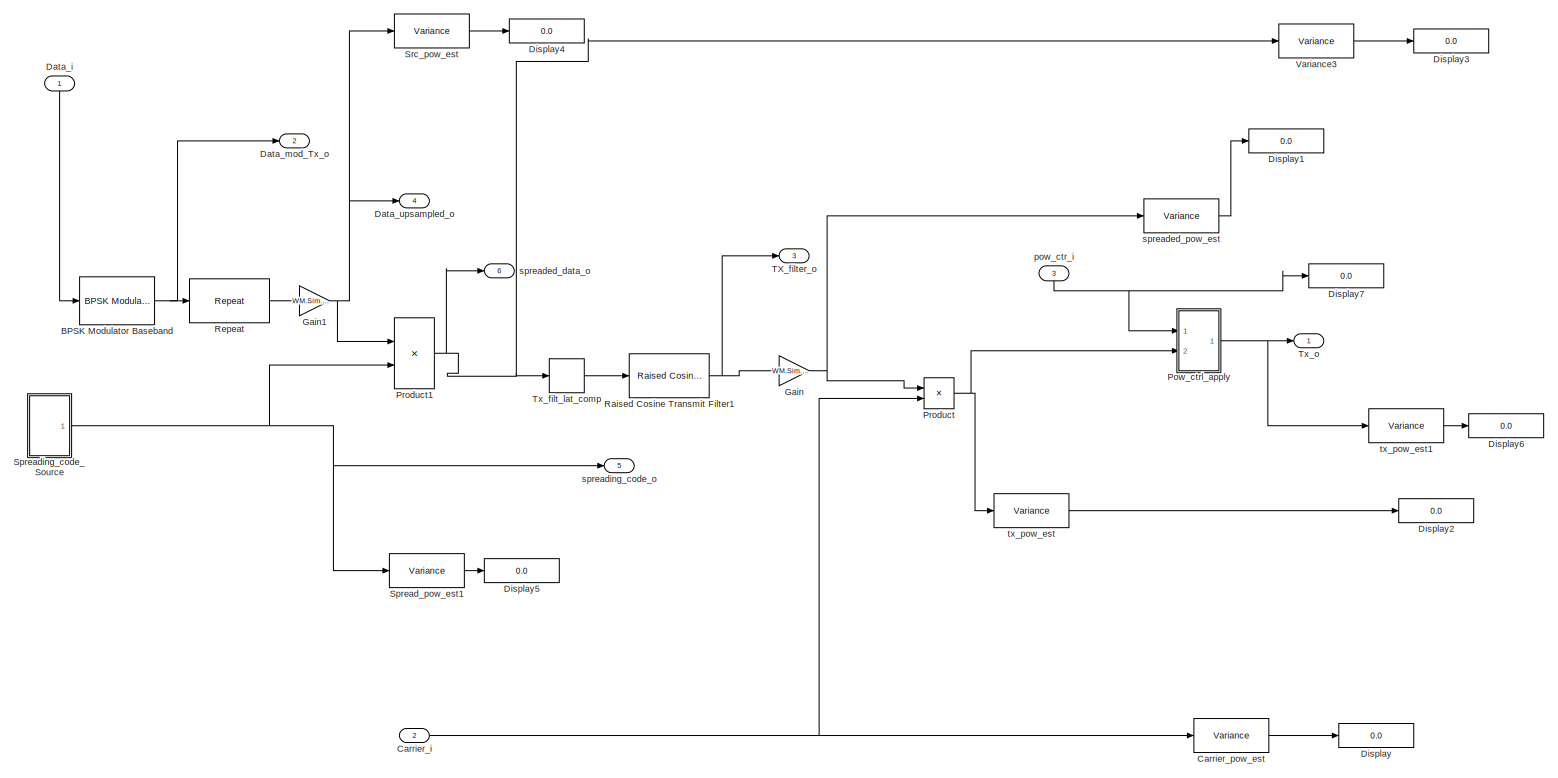
[diagram: TX_Chain - part 1/1, most of the canvas]
BLOCK [SubSystem] TX_Chain
  FunctionWithSeparateData = off
  MaskHideContents = off
  MinAlgLoopOccurrences = off
  Opaque = off
  Ports = [3, 6]
  PropExecContextOutsideSubsystem = off
  RTWSystemCode = Auto
  RequestExecContextInheritance = off
BLOCK [Reference] TX_Chain/BPSK Modulator Baseband  REF=commdigbbndpm3/BPSK
Modulator
Baseband
  Ph = 0
  Ports = [1, 1]
  SourceBlock = commdigbbndpm3/BPSK\nModulator\nBaseband
  SourceType = BPSK Modulator Baseband
  outDtype = double
  outFracLen = 15
  outFracLenMode = Best precision
  outUDDataType = sfix(16)
  outWordLen = 16
BLOCK [Inport] TX_Chain/Carrier_i
  IconDisplay = Port number
  Port = 2
BLOCK [Reference] TX_Chain/Carrier_pow_est  REF=dspstat3/Variance
  InputProcessing = Columns as channels (frame based)
  LockScale = off
  Ports = [1, 1]
  SourceBlock = dspstat3/Variance
  SourceType = Variance
  UserDataPersistent = on
  accumFracLength = 30
  accumMode = Same as input-squared product
  accumWordLength = 32
  additionalParams = off
  allowOverrides = on
  dimension = 1
  directionMode = Each column
  memoryFracLength = 30
  memoryMode = Same as input-squared product
  memoryWordLength = 32
  outputFracLength = 30
  outputMode = Same as input-squared product
  outputWordLength = 32
  overflowMode = off
  prodOutputFracLength = 30
  prodOutputMode = Same as input
  prodOutputWordLength = 32
  reset_popup = None
  roiEnable = off
  roiFlag = off
  roiOutput = Individual statistics for each ROI
  roiPortion = Entire ROI
  roiType = Rectangles
  roundingMode = Floor
  run = on
  treatSBRowAsCol = on
BLOCK [Inport] TX_Chain/Data_i
  IconDisplay = Port number
BLOCK [Outport] TX_Chain/Data_mod_Tx_o
  IconDisplay = Port number
  Port = 2
BLOCK [Outport] TX_Chain/Data_upsampled_o
  IconDisplay = Port number
  Port = 4
BLOCK [Display] TX_Chain/Display
  Decimation = 1
  Lockdown = off
  Ports = [1]
BLOCK [Display] TX_Chain/Display1
  Decimation = 1
  Lockdown = off
  Ports = [1]
BLOCK [Display] TX_Chain/Display2
  Decimation = 1
  Lockdown = off
  Ports = [1]
BLOCK [Display] TX_Chain/Display3
  Decimation = 1
  Lockdown = off
  Ports = [1]
BLOCK [Display] TX_Chain/Display4
  Decimation = 1
  Lockdown = off
  Ports = [1]
BLOCK [Display] TX_Chain/Display5
  Decimation = 1
  Lockdown = off
  Ports = [1]
BLOCK [Display] TX_Chain/Display6
  Decimation = 1
  Lockdown = off
  Ports = [1]
BLOCK [Display] TX_Chain/Display7
  Decimation = 1
  Lockdown = off
  Ports = [1]
BLOCK [Gain] TX_Chain/Gain
  Gain = WM.Sim.Encoder.TxFilter.Gain
  OutDataTypeStr = Inherit: Inherit via internal rule
  ParamDataTypeStr = Inherit: Inherit via internal rule
  SaturateOnIntegerOverflow = off
BLOCK [Gain] TX_Chain/Gain1
  Gain = WM.Sim.Encoder.SourceGain
  OutDataTypeStr = Inherit: Inherit via internal rule
  ParamDataTypeStr = Inherit: Inherit via internal rule
  SaturateOnIntegerOverflow = off
BLOCK [SubSystem] TX_Chain/Pow_ctrl_apply
  FunctionWithSeparateData = off
  MaskHideContents = off
  MinAlgLoopOccurrences = off
  Opaque = off
  Ports = [2, 1]
  PropExecContextOutsideSubsystem = off
  RTWSystemCode = Auto
  RequestExecContextInheritance = off
BLOCK [Constant] TX_Chain/Pow_ctrl_apply/Constant1
BLOCK [Constant] TX_Chain/Pow_ctrl_apply/Constant2
  Value = WM.Sim.Encoder.Pow_ctrl.Switch
BLOCK [Display] TX_Chain/Pow_ctrl_apply/Display8
  Decimation = 1
  Lockdown = off
  Ports = [1]
BLOCK [Product] TX_Chain/Pow_ctrl_apply/Product2
  InputSameDT = off
  OutDataTypeStr = Inherit: Inherit via internal rule
  Ports = [2, 1]
  RndMeth = Floor
  SampleTime = WM.Sim.Frame_len/WM.Sim.Fs_audio
  SaturateOnIntegerOverflow = off
BLOCK [Switch] TX_Chain/Pow_ctrl_apply/Switch
  Criteria = u2 > Threshold
  InputSameDT = off
  SaturateOnIntegerOverflow = off
BLOCK [Inport] TX_Chain/Pow_ctrl_apply/ctrl_pow_i
  IconDisplay = Port number
BLOCK [Inport] TX_Chain/Pow_ctrl_apply/data_i
  IconDisplay = Port number
  Port = 2
BLOCK [Outport] TX_Chain/Pow_ctrl_apply/data_o
  IconDisplay = Port number
BLOCK [Product] TX_Chain/Product
  InputSameDT = off
  OutDataTypeStr = Inherit: Inherit via internal rule
  Ports = [2, 1]
  RndMeth = Floor
  SaturateOnIntegerOverflow = off
BLOCK [Product] TX_Chain/Product1
  InputSameDT = off
  OutDataTypeStr = Inherit: Inherit via internal rule
  Ports = [2, 1]
  RndMeth = Floor
  SaturateOnIntegerOverflow = off
BLOCK [Reference] TX_Chain/Raised Cosine Transmit Filter1  REF=commfilt2/Raised Cosine
Transmit Filter
  D = (2*(WM.Sim.Encoder.TxFilter.GroupDelay))/2
  InputProcessing = Columns as channels (frame based)
  LockScale = off
  N = WM.Sim.Encoder.TxFilter.OversamplingFactor
  Ports = [1, 1]
  R = WM.Sim.Encoder.TxFilter.RollOffFactor
  SourceBlock = commfilt2/Raised Cosine\nTransmit Filter
  SourceType = Raised Cosine Transmit Filter
  UserDataPersistent = on
  accumFracLength = 30
  accumMode = Inherit via internal rule
  accumWordLength = 32
  checkCoeff = off
  checkGain = Normalized
  coeffFracLength = 15
  coeffMode = Same word length as input
  coeffWordLength = 16
  filtType = Normal
  filterGain = 1
  framing = Allow multirate processing
  launchFVT = off
  outputFracLength = 15
  outputMode = Same as accumulator
  outputWordLength = 16
  overflowMode = off
  prodOutputFracLength = 30
  prodOutputMode = Inherit via internal rule
  prodOutputWordLength = 32
  roundingMode = Floor
  sampMode = Mute
  saveAsFlag = 0
  variableName = rcTxFilt1
BLOCK [Reference] TX_Chain/Repeat  REF=dspsigops/Repeat
  InputProcessing = Columns as channels (frame based)
  N = WM.Sim.Encoder.SF
  Ports = [1, 1]
  RateOptions = Allow multirate processing
  SourceBlock = dspsigops/Repeat
  SourceType = Repeat
  UserDataPersistent = on
  ic = 0
  mode = Unused parameter value
BLOCK [Reference] TX_Chain/Spread_pow_est1  REF=dspstat3/Variance
  InputProcessing = Columns as channels (frame based)
  LockScale = off
  Ports = [1, 1]
  SourceBlock = dspstat3/Variance
  SourceType = Variance
  UserDataPersistent = on
  accumFracLength = 30
  accumMode = Same as input-squared product
  accumWordLength = 32
  additionalParams = off
  allowOverrides = on
  dimension = 1
  directionMode = Each column
  memoryFracLength = 30
  memoryMode = Same as input-squared product
  memoryWordLength = 32
  outputFracLength = 30
  outputMode = Same as input-squared product
  outputWordLength = 32
  overflowMode = off
  prodOutputFracLength = 30
  prodOutputMode = Same as input
  prodOutputWordLength = 32
  reset_popup = None
  roiEnable = off
  roiFlag = off
  roiOutput = Individual statistics for each ROI
  roiPortion = Entire ROI
  roiType = Rectangles
  roundingMode = Floor
  run = on
  treatSBRowAsCol = on
BLOCK [SubSystem] TX_Chain/Spreading_code_Source
  FunctionWithSeparateData = off
  MaskHideContents = off
  MinAlgLoopOccurrences = off
  Opaque = off
  Ports = [0, 1]
  PropExecContextOutsideSubsystem = off
  RTWSystemCode = Auto
  RequestExecContextInheritance = off
BLOCK [Reference] TX_Chain/Spreading_code_Source/BPSK Modulator Baseband  REF=commdigbbndpm3/BPSK
Modulator
Baseband
  Ph = 0
  Ports = [1, 1]
  SourceBlock = commdigbbndpm3/BPSK\nModulator\nBaseband
  SourceType = BPSK Modulator Baseband
  outDtype = double
  outFracLen = 15
  outFracLenMode = Best precision
  outUDDataType = sfix(16)
  outWordLen = 16
BLOCK [Buffer] TX_Chain/Spreading_code_Source/Buffer
  N = int32(WM.Sim.Frame_len)
  TreatMby1Signals = One channel
BLOCK [Constant] TX_Chain/Spreading_code_Source/Constant
  FramePeriod = WM.Sim.SampleTimes.Tspreader
  SampleTime = WM.Sim.SampleTimes.Tspreader
  SamplingMode = Frame based
  VectorParams1D = off
BLOCK [Constant] TX_Chain/Spreading_code_Source/Constant1
  FramePeriod = WM.Sim.SampleTimes.Tspreader
  Value = WM.Sim.Encoder.Spreader.Switch
  VectorParams1D = off
BLOCK [Outport] TX_Chain/Spreading_code_Source/Data
  IconDisplay = Port number
BLOCK [FrameConversion] TX_Chain/Spreading_code_Source/Frame Conversion
  Ports = [1, 1]
BLOCK [Gain] TX_Chain/Spreading_code_Source/Gain1
  Gain = WM.Sim.Encoder.Spreader.Gain
  OutDataTypeStr = Inherit: Inherit via internal rule
  ParamDataTypeStr = Inherit: Inherit via internal rule
  SaturateOnIntegerOverflow = off
BLOCK [Reference] TX_Chain/Spreading_code_Source/Random Integer Generator  REF=commrandsrc2/Random Integer
Generator
  Ports = [0, 1]
  SourceBlock = commrandsrc2/Random Integer\nGenerator
  SourceType = Random Integer Generator
  Ts = WM.Sim.SampleTimes.Tspreader
  frameBased = on
  mul = WM.Sim.order_M
  orient = off
  outDataType = double
  sampPerFrame = int32(WM.Sim.Frame_len)
  seed = WM.Sim.Encoder.Spreader.seed_code_real
BLOCK [Switch] TX_Chain/Spreading_code_Source/Switch
  Criteria = u2 > Threshold
  InputSameDT = off
  SaturateOnIntegerOverflow = off
BLOCK [Reference] TX_Chain/Src_pow_est  REF=dspstat3/Variance
  InputProcessing = Columns as channels (frame based)
  LockScale = off
  Ports = [1, 1]
  SourceBlock = dspstat3/Variance
  SourceType = Variance
  UserDataPersistent = on
  accumFracLength = 30
  accumMode = Same as input-squared product
  accumWordLength = 32
  additionalParams = off
  allowOverrides = on
  dimension = 1
  directionMode = Each column
  memoryFracLength = 30
  memoryMode = Same as input-squared product
  memoryWordLength = 32
  outputFracLength = 30
  outputMode = Same as input-squared product
  outputWordLength = 32
  overflowMode = off
  prodOutputFracLength = 30
  prodOutputMode = Same as input
  prodOutputWordLength = 32
  reset_popup = None
  roiEnable = off
  roiFlag = off
  roiOutput = Individual statistics for each ROI
  roiPortion = Entire ROI
  roiType = Rectangles
  roundingMode = Floor
  run = on
  treatSBRowAsCol = on
BLOCK [Outport] TX_Chain/TX_filter_o
  IconDisplay = Port number
  Port = 3
BLOCK [Delay] TX_Chain/Tx_filt_lat_comp
  DelayLength = WM.Sim.Encoder.TxFilter.Latency_compensation
  InputPortMap = u0
  InputProcessing = Columns as channels (frame based)
  Ports = [1, 1]
BLOCK [Outport] TX_Chain/Tx_o
  IconDisplay = Port number
BLOCK [Reference] TX_Chain/Variance3  REF=dspstat3/Variance
  InputProcessing = Columns as channels (frame based)
  LockScale = off
  Ports = [1, 1]
  SourceBlock = dspstat3/Variance
  SourceType = Variance
  UserDataPersistent = on
  accumFracLength = 30
  accumMode = Same as input-squared product
  accumWordLength = 32
  additionalParams = off
  allowOverrides = on
  dimension = 1
  directionMode = Each column
  memoryFracLength = 30
  memoryMode = Same as input-squared product
  memoryWordLength = 32
  outputFracLength = 30
  outputMode = Same as input-squared product
  outputWordLength = 32
  overflowMode = off
  prodOutputFracLength = 30
  prodOutputMode = Same as input
  prodOutputWordLength = 32
  reset_popup = None
  roiEnable = off
  roiFlag = off
  roiOutput = Individual statistics for each ROI
  roiPortion = Entire ROI
  roiType = Rectangles
  roundingMode = Floor
  run = on
  treatSBRowAsCol = on
BLOCK [Inport] TX_Chain/pow_ctr_i
  IconDisplay = Port number
  Port = 3
BLOCK [Outport] TX_Chain/spreaded_data_o
  IconDisplay = Port number
  Port = 6
BLOCK [Reference] TX_Chain/spreaded_pow_est  REF=dspstat3/Variance
  InputProcessing = Columns as channels (frame based)
  LockScale = off
  Ports = [1, 1]
  SourceBlock = dspstat3/Variance
  SourceType = Variance
  UserDataPersistent = on
  accumFracLength = 30
  accumMode = Same as input-squared product
  accumWordLength = 32
  additionalParams = off
  allowOverrides = on
  dimension = 1
  directionMode = Each column
  memoryFracLength = 30
  memoryMode = Same as input-squared product
  memoryWordLength = 32
  outputFracLength = 30
  outputMode = Same as input-squared product
  outputWordLength = 32
  overflowMode = off
  prodOutputFracLength = 30
  prodOutputMode = Same as input
  prodOutputWordLength = 32
  reset_popup = None
  roiEnable = off
  roiFlag = off
  roiOutput = Individual statistics for each ROI
  roiPortion = Entire ROI
  roiType = Rectangles
  roundingMode = Floor
  run = on
  treatSBRowAsCol = on
BLOCK [Outport] TX_Chain/spreading_code_o
  IconDisplay = Port number
  Port = 5
BLOCK [Reference] TX_Chain/tx_pow_est  REF=dspstat3/Variance
  InputProcessing = Columns as channels (frame based)
  LockScale = off
  Ports = [1, 1]
  SourceBlock = dspstat3/Variance
  SourceType = Variance
  UserDataPersistent = on
  accumFracLength = 30
  accumMode = Same as input-squared product
  accumWordLength = 32
  additionalParams = off
  allowOverrides = on
  dimension = 1
  directionMode = Each column
  memoryFracLength = 30
  memoryMode = Same as input-squared product
  memoryWordLength = 32
  outputFracLength = 30
  outputMode = Same as input-squared product
  outputWordLength = 32
  overflowMode = off
  prodOutputFracLength = 30
  prodOutputMode = Same as input
  prodOutputWordLength = 32
  reset_popup = None
  roiEnable = off
  roiFlag = off
  roiOutput = Individual statistics for each ROI
  roiPortion = Entire ROI
  roiType = Rectangles
  roundingMode = Floor
  run = on
  treatSBRowAsCol = on
BLOCK [Reference] TX_Chain/tx_pow_est1  REF=dspstat3/Variance
  InputProcessing = Columns as channels (frame based)
  LockScale = off
  Ports = [1, 1]
  SourceBlock = dspstat3/Variance
  SourceType = Variance
  UserDataPersistent = on
  accumFracLength = 30
  accumMode = Same as input-squared product
  accumWordLength = 32
  additionalParams = off
  allowOverrides = on
  dimension = 1
  directionMode = Each column
  memoryFracLength = 30
  memoryMode = Same as input-squared product
  memoryWordLength = 32
  outputFracLength = 30
  outputMode = Same as input-squared product
  outputWordLength = 32
  overflowMode = off
  prodOutputFracLength = 30
  prodOutputMode = Same as input
  prodOutputWordLength = 32
  reset_popup = None
  roiEnable = off
  roiFlag = off
  roiOutput = Individual statistics for each ROI
  roiPortion = Entire ROI
  roiType = Rectangles
  roundingMode = Floor
  run = on
  treatSBRowAsCol = on
BLOCK [From] TX_filtered
  GotoTag = Tx_baseband_o
BLOCK [From] TX_spreaded
  GotoTag = spreaded_data_o
BLOCK [From] TX_spreading_code
  GotoTag = spreading_code_o
BLOCK [From] TX_upsampled
  GotoTag = data_upsampled_o
BLOCK [From] Tx_baseband
  GotoTag = Src_baseband_o
BLOCK [From] Tx_transimtted
  GotoTag = Transmitter_o
BLOCK [SubSystem] Uncoded_BER_calculator1
  FunctionWithSeparateData = off
  MaskHideContents = off
  MinAlgLoopOccurrences = off
  Opaque = off
  Ports = [2]
  PropExecContextOutsideSubsystem = off
  RTWSystemCode = Auto
  RequestExecContextInheritance = off
BLOCK [Display] Uncoded_BER_calculator1/Display
  Decimation = 1
  Lockdown = off
  Ports = [1]
BLOCK [Reference] Uncoded_BER_calculator1/Error Rate Calculation  REF=commsink2/Error Rate
Calculation
  N = WM.Sim.Tx_delay_eq_coderate
  PMode = Port
  Ports = [2, 1]
  RsMode2 = off
  SourceBlock = commsink2/Error Rate\nCalculation
  SourceType = Error Rate Calculation
  WsName = ErrorVec
  cp_mode = Entire frame
  maxBits = 1e6
  numErr = 100
  st_delay = WM.Sim.Frame_len
  stop = off
  subframe = []
BLOCK [Inport] Uncoded_BER_calculator1/Rx_data_i
  IconDisplay = Port number
  Port = 2
BLOCK [ToWorkspace] Uncoded_BER_calculator1/To Workspace
  MaxDataPoints = inf
  Ports = [1]
  SampleTime = -1
  SaveFormat = Timeseries
  VariableName = Uncoded_BER_results_simout
BLOCK [Inport] Uncoded_BER_calculator1/Tx_delayed_data_i
  IconDisplay = Port number
BLOCK [Display] carrier_freq
  Decimation = 1
  Lockdown = off
  Ports = [1]
BLOCK [Goto] channel_o
  GotoTag = Channel_o
BLOCK [Goto] coded_rx_o
  GotoTag = coded_rx_o
BLOCK [From] coded_tx
  GotoTag = coded_tx_o
BLOCK [From] coded_tx1
  GotoTag = coded_rx_o
BLOCK [Goto] coded_tx_o
  GotoTag = coded_tx_o
BLOCK [Goto] data_upsamp_o
  GotoTag = data_upsampled_o
BLOCK [Goto] despreaded_o
  GotoTag = rx_despreaded_o
BLOCK [Goto] integrated_o
  GotoTag = rx_integrated_o
BLOCK [Goto] rx_filt_o
  GotoTag = rx_filt_o
BLOCK [Goto] spread_code_del_o
  GotoTag = rx_spreading_code_del_o
BLOCK [Goto] spreaded_o
  GotoTag = spreaded_data_o
BLOCK [Goto] spreading_code_o
  GotoTag = spreading_code_o
BLOCK [Goto] src_bb_o
  GotoTag = Src_baseband_o
BLOCK [Goto] tx_filt_o
  GotoTag = Tx_baseband_o
BLOCK [Goto] tx_o
  GotoTag = Transmitter_o
ANNOTATION SNR_ctrl/Pow_estimat: 2 Fix buffer is only to have no errors for Frame_len=1 if the output used is pow_variace you can don't care
NET BER_calculator/Error Rate Calculation:1 -> BER_calculator/Display:1, BER_calculator/To Workspace:1
LINE BER_calculator/Rx_data_i:1 -> BER_calculator/Error Rate Calculation:2
LINE BER_calculator/Tx_delayed_data_i:1 -> BER_calculator/Error Rate Calculation:1
LINE Carrier Modulator/Buffer1:1 -> Carrier Modulator/Frame Conversion1:1
LINE Carrier Modulator/Buffer:1 -> Carrier Modulator/Frame Conversion:1
NET Carrier Modulator/Constant:1 -> Carrier Modulator/Sum:1, Carrier Modulator/Switch:1
NET Carrier Modulator/Discrete-Time VCO1:1 -> Carrier Modulator/Gain2:1, Carrier Modulator/Gain:1
LINE Carrier Modulator/Discrete-Time VCO:1 -> Carrier Modulator/Gain1:1
LINE Carrier Modulator/Downsample:1 -> Carrier Modulator/Carrirer_freq_o:1
LINE Carrier Modulator/Frame Conversion1:1 -> Carrier Modulator/RX_carrier:1
LINE Carrier Modulator/Frame Conversion:1 -> Carrier Modulator/TX_Carrier:1
NET Carrier Modulator/Gain1:1 -> Carrier Modulator/Real-Imag to Complex1:1, Carrier Modulator/Real-Imag to Complex:1
LINE Carrier Modulator/Gain2:1 -> Carrier Modulator/Real-Imag to Complex1:2
LINE Carrier Modulator/Gain:1 -> Carrier Modulator/Real-Imag to Complex:2
LINE Carrier Modulator/Random Source:1 -> Carrier Modulator/Repeat:1
LINE Carrier Modulator/Real-Imag to Complex1:1 -> Carrier Modulator/Buffer1:1
LINE Carrier Modulator/Real-Imag to Complex:1 -> Carrier Modulator/Buffer:1
LINE Carrier Modulator/Repeat:1 -> Carrier Modulator/Sum:2
LINE Carrier Modulator/Sum:1 -> Carrier Modulator/Switch:3
NET Carrier Modulator/Switch:1 -> Carrier Modulator/Discrete-Time VCO1:1, Carrier Modulator/Discrete-Time VCO:1, Carrier Modulator/Downsample:1
LINE Carrier Modulator/switch_ctrl:1 -> Carrier Modulator/Switch:2
LINE Carrier Modulator:1 -> TX_Chain:2
LINE Carrier Modulator:2 -> RX_chain:2
NET Carrier Modulator:3 -> SNR_ctrl:2, carrier_freq:1
LINE Chan_jammer:1 -> Probing_system:15
NET Channel/AWGN/ awgn variance1:1 -> Channel/AWGN/Display5:1, Channel/AWGN/dB Conversion1:1, Channel/AWGN/dB Conversion4:1
NET Channel/AWGN/ awgn variance:1 -> Channel/AWGN/Display2:1, Channel/AWGN/dB Conversion:1
NET Channel/AWGN/AWGN Channel:1 -> Channel/AWGN/ awgn variance:1, Channel/AWGN/AWGN_o:1
LINE Channel/AWGN/Sum1:1 -> Channel/AWGN/SNR_db:1
LINE Channel/AWGN/dB Conversion1:1 -> Channel/AWGN/Sum1:2
LINE Channel/AWGN/dB Conversion4:1 -> Channel/AWGN/Display4:1
LINE Channel/AWGN/dB Conversion:1 -> Channel/AWGN/Sum1:1
NET Channel/AWGN/data_i:1 -> Channel/AWGN/ awgn variance1:1, Channel/AWGN/AWGN Channel:1
LINE Channel/AWGN:1 -> Channel/Out1:1
LINE Channel/AWGN_custom/AWGN Channel Custom/Complex to Real-Imag1:1 -> Channel/AWGN_custom/AWGN Channel Custom/Sum1:2
LINE Channel/AWGN_custom/AWGN Channel Custom/Complex to Real-Imag1:2 -> Channel/AWGN_custom/AWGN Channel Custom/Sum2:1
NET Channel/AWGN_custom/AWGN Channel Custom/Gain1:1 -> Channel/AWGN_custom/AWGN Channel Custom/Real-Imag to Complex2:1, Channel/AWGN_custom/AWGN Channel Custom/Sum1:1
NET Channel/AWGN_custom/AWGN Channel Custom/Gain:1 -> Channel/AWGN_custom/AWGN Channel Custom/Real-Imag to Complex2:2, Channel/AWGN_custom/AWGN Channel Custom/Sum2:2
LINE Channel/AWGN_custom/AWGN Channel Custom/Noise imag:1 -> Channel/AWGN_custom/AWGN Channel Custom/Gain:1
LINE Channel/AWGN_custom/AWGN Channel Custom/Noise real:1 -> Channel/AWGN_custom/AWGN Channel Custom/Gain1:1
LINE Channel/AWGN_custom/AWGN Channel Custom/Real-Imag to Complex1:1 -> Channel/AWGN_custom/AWGN Channel Custom/AWGN_o:1
LINE Channel/AWGN_custom/AWGN Channel Custom/Real-Imag to Complex2:1 -> Channel/AWGN_custom/AWGN Channel Custom/only_noise_o:1
LINE Channel/AWGN_custom/AWGN Channel Custom/Sum1:1 -> Channel/AWGN_custom/AWGN Channel Custom/Real-Imag to Complex1:1
LINE Channel/AWGN_custom/AWGN Channel Custom/Sum2:1 -> Channel/AWGN_custom/AWGN Channel Custom/Real-Imag to Complex1:2
LINE Channel/AWGN_custom/AWGN Channel Custom/data_i:1 -> Channel/AWGN_custom/AWGN Channel Custom/Complex to Real-Imag1:1
LINE Channel/AWGN_custom/AWGN Channel Custom:1 -> Channel/AWGN_custom/just_noise_o:1
NET Channel/AWGN_custom/AWGN Channel Custom:2 -> Channel/AWGN_custom/AWGN_custom_o:1, Channel/AWGN_custom/SNR_estimate:1, Channel/AWGN_custom/custom awgn variance1:1
LINE Channel/AWGN_custom/SNR_estimate/custom awgn variance2:1 -> Channel/AWGN_custom/SNR_estimate/dB Conversion3:1
LINE Channel/AWGN_custom/SNR_estimate/custom awgn variance3:1 -> Channel/AWGN_custom/SNR_estimate/dB Conversion2:1
LINE Channel/AWGN_custom/SNR_estimate/dB Conversion2:1 -> Channel/AWGN_custom/SNR_estimate/Sum2:1
LINE Channel/AWGN_custom/SNR_estimate/dB Conversion3:1 -> Channel/AWGN_custom/SNR_estimate/Sum2:2
LINE Channel/AWGN_custom/SNR_estimate/in_block_i:1 -> Channel/AWGN_custom/SNR_estimate/custom awgn variance2:1
LINE Channel/AWGN_custom/SNR_estimate/out_block_i:1 -> Channel/AWGN_custom/SNR_estimate/custom awgn variance3:1
LINE Channel/AWGN_custom/custom awgn variance1:1 -> Channel/AWGN_custom/Display1:1
NET Channel/AWGN_custom/sig_i:1 -> Channel/AWGN_custom/AWGN Channel Custom:1, Channel/AWGN_custom/SNR_estimate:2
LINE Channel/AWGN_custom:1 -> Channel/Switch:1
LINE Channel/AWGN_custom:2 -> Channel/Switch1:1
LINE Channel/Audio_jammer/Audio_channel/Constant1:1 -> Channel/Audio_jammer/Audio_channel/Real-Imag to Complex:2
LINE Channel/Audio_jammer/Audio_channel/From Multimedia File:1 -> Channel/Audio_jammer/Audio_channel/Selector:1
NET Channel/Audio_jammer/Audio_channel/Real-Imag to Complex:1 -> Channel/Audio_jammer/Audio_channel/Jamm_o:1, Channel/Audio_jammer/Audio_channel/Sum:2
LINE Channel/Audio_jammer/Audio_channel/Selector:1 -> Channel/Audio_jammer/Audio_channel/Real-Imag to Complex:1
LINE Channel/Audio_jammer/Audio_channel/Sum:1 -> Channel/Audio_jammer/Audio_channel/mix_o:1
LINE Channel/Audio_jammer/Audio_channel/data_i:1 -> Channel/Audio_jammer/Audio_channel/Sum:1
NET Channel/Audio_jammer/Audio_channel:1 -> Channel/Audio_jammer/Complex to Real-Imag:1, Channel/Audio_jammer/Jammed_o:1
LINE Channel/Audio_jammer/Audio_channel:2 -> Channel/Audio_jammer/jammer_o:1
LINE Channel/Audio_jammer/Complex to Real-Imag:1 -> Channel/Audio_jammer/To Multimedia File:1
LINE Channel/Audio_jammer/sig_i:1 -> Channel/Audio_jammer/Audio_channel:1
LINE Channel/Audio_jammer:1 -> Channel/Switch:3
LINE Channel/Audio_jammer:2 -> Channel/Switch1:3
NET Channel/Constant:1 -> Channel/Switch1:2, Channel/Switch:2
NET Channel/In1:1 -> Channel/AWGN:1, Channel/AWGN_custom:1, Channel/Audio_jammer:1
LINE Channel/Switch1:1 -> Channel/Just_noise_o:1
LINE Channel/Switch:1 -> Channel/Jammed_o:1
NET Channel:2 -> RX_chain:1, channel_o:1
NET Channel:3 -> Jammer_o:1, SNR_ctrl:1
LINE Data_Source/Buffer:1 -> Data_Source/Frame Conversion:1
LINE Data_Source/Constant1:1 -> Data_Source/Switch:2
LINE Data_Source/Constant:1 -> Data_Source/Buffer:1
LINE Data_Source/Frame Conversion:1 -> Data_Source/Switch:3
LINE Data_Source/Random Integer Generator:1 -> Data_Source/Switch:1
LINE Data_Source/Switch:1 -> Data_Source/Data:1
NET Data_Source:1 -> BER_calculator:1, Delay:1, FEC:1
LINE Delay1:1 -> RX_chain:3
LINE Delay2:1 -> coded_tx_o:1
LINE Delay:1 -> Goto3:1
LINE FEC/Block/uncoded_i:1 -> FEC/Block/coded_o:1
NET FEC/Block:1 -> FEC/Buffer1:1, FEC/Time FEC:2
NET FEC/Buffer1:1 -> FEC/Frame Conversion:1, FEC/Time FEC2:1, FEC/Time FEC:1
NET FEC/Buffer:1 -> FEC/Block:1, FEC/Time FEC1:1
LINE FEC/Frame Conversion:1 -> FEC/coded_o:1
NET FEC/uncoded_i:1 -> FEC/Buffer:1, FEC/Time FEC1:2, FEC/Time FEC2:2
NET FEC:1 -> Delay2:1, TX_Chain:1, Uncoded_BER_calculator1:1
LINE FEC_decod/Block/coded_i:1 -> FEC_decod/Block/decoded_o:1
NET FEC_decod/Block:1 -> FEC_decod/Time FEC_decod:2, FEC_decod/Unbuff:1
NET FEC_decod/Buffer:1 -> FEC_decod/Block:1, FEC_decod/Time FEC_decod1:1
LINE FEC_decod/Frame Conversion:1 -> FEC_decod/decoded_o:1
LINE FEC_decod/Unbuff/Buffer:1 -> FEC_decod/Unbuff/unbuffered_o:1
LINE FEC_decod/Unbuff/buffered_i:1 -> FEC_decod/Unbuff/Buffer:1
NET FEC_decod/Unbuff:1 -> FEC_decod/Frame Conversion:1, FEC_decod/Time FEC_decod:1
NET FEC_decod/coded_i:1 -> FEC_decod/Buffer:1, FEC_decod/Time FEC_decod1:2
NET FEC_decod:1 -> BER_calculator:2, Goto2:1
LINE FEC_decod_delay_comp/inp_i:1 -> FEC_decod_delay_comp/out_o:1
NET FEC_decod_delay_comp:1 -> FEC_decod:1, Uncoded_BER_calculator1:2, coded_rx_o:1
LINE Probing_system/Channel_jammer_i:1 -> Probing_system/Jammer:1
LINE Probing_system/Complex to Real-Imag1:1 -> Probing_system/TX_spreading:1
LINE Probing_system/Complex to Real-Imag2:1 -> Probing_system/TX_spreading:2
LINE Probing_system/Complex to Real-Imag3:1 -> Probing_system/TX_spreading:3
LINE Probing_system/Complex to Real-Imag4:1 -> Probing_system/RX_spreading:1
LINE Probing_system/Complex to Real-Imag5:1 -> Probing_system/RX_spreading:2
LINE Probing_system/Complex to Real-Imag6:1 -> Probing_system/RX_spreading:3
LINE Probing_system/Complex to Real-Imag7:1 -> Probing_system/TX_spreading:4
LINE Probing_system/Complex to Real-Imag8:1 -> Probing_system/RX_spreading:4
LINE Probing_system/Complex to Real-Imag:1 -> Probing_system/Unbuffer8:1
LINE Probing_system/Matrix Concatenate:1 -> Probing_system/Unbuffer9:1
LINE Probing_system/RX_downconversion_i:1 -> Probing_system/downconv_spectrum:1
LINE Probing_system/RX_integrated_i:1 -> Probing_system/Unbuffer7:1
NET Probing_system/Rx_filt_i:1 -> Probing_system/Rx_low_pass:1, Probing_system/Unbuffer3:1
LINE Probing_system/Rx_signal_i:1 -> Probing_system/Rx_signal:1
LINE Probing_system/Tx_signal_i:1 -> Probing_system/Tx_signal:1
LINE Probing_system/Tx_spreading_code:1 -> Probing_system/Unbuffer2:1
LINE Probing_system/Tx_src_baseband_i1:1 -> Probing_system/Complex to Real-Imag:1
LINE Probing_system/Unbuffer10:1 -> Probing_system/FEC scope:1
LINE Probing_system/Unbuffer11:1 -> Probing_system/FEC scope:2
LINE Probing_system/Unbuffer12:1 -> Probing_system/FEC scope:3
LINE Probing_system/Unbuffer13:1 -> Probing_system/FEC scope:4
LINE Probing_system/Unbuffer1:1 -> Probing_system/Complex to Real-Imag2:1
LINE Probing_system/Unbuffer2:1 -> Probing_system/Complex to Real-Imag3:1
LINE Probing_system/Unbuffer3:1 -> Probing_system/Complex to Real-Imag5:1
LINE Probing_system/Unbuffer4:1 -> Probing_system/Complex to Real-Imag6:1
LINE Probing_system/Unbuffer5:1 -> Probing_system/Complex to Real-Imag4:1
LINE Probing_system/Unbuffer6:1 -> Probing_system/Complex to Real-Imag7:1
LINE Probing_system/Unbuffer7:1 -> Probing_system/Complex to Real-Imag8:1
LINE Probing_system/Unbuffer8:1 -> Probing_system/src_baseband:1
LINE Probing_system/Unbuffer9:1 -> Probing_system/error_rate_scope:1
LINE Probing_system/Unbuffer:1 -> Probing_system/Complex to Real-Imag1:1
LINE Probing_system/coded_data_rx_i:1 -> Probing_system/Unbuffer11:1
LINE Probing_system/coded_data_tx_i:1 -> Probing_system/Unbuffer10:1
NET Probing_system/rx_data_i:1 -> Probing_system/Matrix Concatenate:1, Probing_system/Unbuffer13:1
NET Probing_system/rx_data_tx_delayed_i:1 -> Probing_system/Matrix Concatenate:2, Probing_system/Unbuffer12:1
LINE Probing_system/rx_despreaded_i:1 -> Probing_system/Unbuffer5:1
LINE Probing_system/rx_spreading_code_i:1 -> Probing_system/Unbuffer4:1
LINE Probing_system/tx_data_upsampled_i:1 -> Probing_system/Unbuffer1:1
NET Probing_system/tx_filtered_i:1 -> Probing_system/Tx_after_cosinetx:1, Probing_system/Unbuffer6:1
LINE Probing_system/tx_spreaded_data_i:1 -> Probing_system/Unbuffer:1
LINE RX_chain/BPSK Demodulator Baseband:1 -> RX_chain/Data_o:1
LINE RX_chain/Burg suppresion/signal_i:1 -> RX_chain/Burg suppresion/filterd_o:1
NET RX_chain/Burg suppresion:1 -> RX_chain/Product2:1, RX_chain/RX_filter_o:1, RX_chain/Variance:1
LINE RX_chain/Carrier_i:1 -> RX_chain/Product1:2
LINE RX_chain/Integrate and Dump Custom/Buffer:1 -> RX_chain/Integrate and Dump Custom/Integrate and dumo:1
LINE RX_chain/Integrate and Dump Custom/Frame Conversion2:1 -> RX_chain/Integrate and Dump Custom/integrated_o:1
LINE RX_chain/Integrate and Dump Custom/Integrate and dumo:1 -> RX_chain/Integrate and Dump Custom/Transpose1:1
LINE RX_chain/Integrate and Dump Custom/Transpose1:1 -> RX_chain/Integrate and Dump Custom/Frame Conversion2:1
LINE RX_chain/Integrate and Dump Custom/Transpose:1 -> RX_chain/Integrate and Dump Custom/Buffer:1
LINE RX_chain/Integrate and Dump Custom/to_integrate_i:1 -> RX_chain/Integrate and Dump Custom/Transpose:1
NET RX_chain/Integrate and Dump Custom:1 -> RX_chain/BPSK Demodulator Baseband:1, RX_chain/Integrated_o:1
NET RX_chain/Product1:1 -> RX_chain/Downconversion_o:1, RX_chain/Raised Cosine Receive Filter:1
NET RX_chain/Product2:1 -> RX_chain/Integrate and Dump Custom:1, RX_chain/despreaded_o:1
LINE RX_chain/RX_i:1 -> RX_chain/Product1:1
LINE RX_chain/Raised Cosine Receive Filter:1 -> RX_chain/Rx_filt_lat_comp:1
NET RX_chain/Rx_filt_lat_comp:1 -> RX_chain/Burg suppresion:1, RX_chain/Variance1:1
NET RX_chain/Spreading_code_i:1 -> RX_chain/Product2:2, RX_chain/spreading_code_o:1
LINE RX_chain/Variance1:1 -> RX_chain/Display1:1
LINE RX_chain/Variance:1 -> RX_chain/Display:1
LINE RX_chain:1 -> FEC_decod_delay_comp:1
LINE RX_chain:2 -> Rx_dowsncov:1
LINE RX_chain:3 -> rx_filt_o:1
LINE RX_chain:4 -> despreaded_o:1
LINE RX_chain:5 -> integrated_o:1
LINE RX_chain:6 -> spread_code_del_o:1
LINE RX_data_recovered:1 -> Probing_system:8
LINE RX_data_tx_delayed:1 -> Probing_system:9
LINE RX_input:1 -> Probing_system:7
LINE Rx_despreaded:1 -> Probing_system:10
LINE Rx_fdownconv1:1 -> Probing_system:14
LINE Rx_fdownconv:1 -> Probing_system:13
LINE Rx_filt:1 -> Probing_system:12
LINE Rx_spreading_code:1 -> Probing_system:11
LINE SNR_ctrl/Eb_N0:1 -> SNR_ctrl/Sum1:2
LINE SNR_ctrl/Gain:1 -> SNR_ctrl/Math Function:1
NET SNR_ctrl/Math Function:1 -> SNR_ctrl/Display3:1, SNR_ctrl/Sqrt:1
LINE SNR_ctrl/Pow_estimat/Buffer:1 -> SNR_ctrl/Pow_estimat/Magnitude FFT:1
LINE SNR_ctrl/Pow_estimat/Frame Conversion:1 -> SNR_ctrl/Pow_estimat/pow_spectral:1
NET SNR_ctrl/Pow_estimat/In1:1 -> SNR_ctrl/Pow_estimat/Buffer:1, SNR_ctrl/Pow_estimat/custom noise variance:1
LINE SNR_ctrl/Pow_estimat/Magnitude FFT:1 -> SNR_ctrl/Pow_estimat/spect_pow_idx_calc:1
LINE SNR_ctrl/Pow_estimat/carr_freq_i:1 -> SNR_ctrl/Pow_estimat/spect_pow_idx_calc:2
LINE SNR_ctrl/Pow_estimat/custom noise variance:1 -> SNR_ctrl/Pow_estimat/pow_variance:1
LINE SNR_ctrl/Pow_estimat/spect_pow_idx_calc:1 -> SNR_ctrl/Pow_estimat/Frame Conversion:1
LINE SNR_ctrl/Pow_estimat:1 -> SNR_ctrl/Display2:1
NET SNR_ctrl/Pow_estimat:2 -> SNR_ctrl/Display1:1, SNR_ctrl/dB Conversion:1
LINE SNR_ctrl/Sqrt:1 -> SNR_ctrl/signal_amp:1
LINE SNR_ctrl/Sum1:1 -> SNR_ctrl/Gain:1
LINE SNR_ctrl/Tsym_Tsamp_ratio:1 -> SNR_ctrl/dB Conversion2:1
LINE SNR_ctrl/bitXsymbol:1 -> SNR_ctrl/dB Conversion1:1
LINE SNR_ctrl/carrier_freq_i:1 -> SNR_ctrl/Pow_estimat:2
LINE SNR_ctrl/dB Conversion1:1 -> SNR_ctrl/Sum1:3
LINE SNR_ctrl/dB Conversion2:1 -> SNR_ctrl/Sum1:4
LINE SNR_ctrl/dB Conversion:1 -> SNR_ctrl/Sum1:1
LINE SNR_ctrl/noise_i:1 -> SNR_ctrl/Pow_estimat:1
LINE SNR_ctrl:1 -> TX_Chain:3
NET TX_Chain/BPSK Modulator Baseband:1 -> TX_Chain/Data_mod_Tx_o:1, TX_Chain/Repeat:1
NET TX_Chain/Carrier_i:1 -> TX_Chain/Carrier_pow_est:1, TX_Chain/Product:2
LINE TX_Chain/Carrier_pow_est:1 -> TX_Chain/Display:1
LINE TX_Chain/Data_i:1 -> TX_Chain/BPSK Modulator Baseband:1
NET TX_Chain/Gain1:1 -> TX_Chain/Data_upsampled_o:1, TX_Chain/Product1:1, TX_Chain/Src_pow_est:1
NET TX_Chain/Gain:1 -> TX_Chain/Product:1, TX_Chain/spreaded_pow_est:1
LINE TX_Chain/Pow_ctrl_apply/Constant1:1 -> TX_Chain/Pow_ctrl_apply/Switch:3
LINE TX_Chain/Pow_ctrl_apply/Constant2:1 -> TX_Chain/Pow_ctrl_apply/Switch:2
LINE TX_Chain/Pow_ctrl_apply/Product2:1 -> TX_Chain/Pow_ctrl_apply/data_o:1
LINE TX_Chain/Pow_ctrl_apply/Switch:1 -> TX_Chain/Pow_ctrl_apply/Product2:1
NET TX_Chain/Pow_ctrl_apply/ctrl_pow_i:1 -> TX_Chain/Pow_ctrl_apply/Display8:1, TX_Chain/Pow_ctrl_apply/Switch:1
LINE TX_Chain/Pow_ctrl_apply/data_i:1 -> TX_Chain/Pow_ctrl_apply/Product2:2
NET TX_Chain/Pow_ctrl_apply:1 -> TX_Chain/Tx_o:1, TX_Chain/tx_pow_est1:1
NET TX_Chain/Product1:1 -> TX_Chain/Tx_filt_lat_comp:1, TX_Chain/Variance3:1, TX_Chain/spreaded_data_o:1
NET TX_Chain/Product:1 -> TX_Chain/Pow_ctrl_apply:2, TX_Chain/tx_pow_est:1
NET TX_Chain/Raised Cosine Transmit Filter1:1 -> TX_Chain/Gain:1, TX_Chain/TX_filter_o:1
LINE TX_Chain/Repeat:1 -> TX_Chain/Gain1:1
LINE TX_Chain/Spread_pow_est1:1 -> TX_Chain/Display5:1
LINE TX_Chain/Spreading_code_Source/BPSK Modulator Baseband:1 -> TX_Chain/Spreading_code_Source/Gain1:1
LINE TX_Chain/Spreading_code_Source/Buffer:1 -> TX_Chain/Spreading_code_Source/Frame Conversion:1
LINE TX_Chain/Spreading_code_Source/Constant1:1 -> TX_Chain/Spreading_code_Source/Switch:2
LINE TX_Chain/Spreading_code_Source/Constant:1 -> TX_Chain/Spreading_code_Source/Buffer:1
LINE TX_Chain/Spreading_code_Source/Frame Conversion:1 -> TX_Chain/Spreading_code_Source/Switch:3
LINE TX_Chain/Spreading_code_Source/Gain1:1 -> TX_Chain/Spreading_code_Source/Data:1
LINE TX_Chain/Spreading_code_Source/Random Integer Generator:1 -> TX_Chain/Spreading_code_Source/Switch:1
LINE TX_Chain/Spreading_code_Source/Switch:1 -> TX_Chain/Spreading_code_Source/BPSK Modulator Baseband:1
NET TX_Chain/Spreading_code_Source:1 -> TX_Chain/Product1:2, TX_Chain/Spread_pow_est1:1, TX_Chain/spreading_code_o:1
LINE TX_Chain/Src_pow_est:1 -> TX_Chain/Display4:1
LINE TX_Chain/Tx_filt_lat_comp:1 -> TX_Chain/Raised Cosine Transmit Filter1:1
LINE TX_Chain/Variance3:1 -> TX_Chain/Display3:1
NET TX_Chain/pow_ctr_i:1 -> TX_Chain/Display7:1, TX_Chain/Pow_ctrl_apply:1
LINE TX_Chain/spreaded_pow_est:1 -> TX_Chain/Display1:1
LINE TX_Chain/tx_pow_est1:1 -> TX_Chain/Display6:1
LINE TX_Chain/tx_pow_est:1 -> TX_Chain/Display2:1
NET TX_Chain:1 -> Channel:1, tx_o:1
LINE TX_Chain:2 -> src_bb_o:1
LINE TX_Chain:3 -> tx_filt_o:1
LINE TX_Chain:4 -> data_upsamp_o:1
NET TX_Chain:5 -> Delay1:1, spreading_code_o:1
LINE TX_Chain:6 -> spreaded_o:1
LINE TX_filtered:1 -> Probing_system:2
LINE TX_spreaded:1 -> Probing_system:4
LINE TX_spreading_code:1 -> Probing_system:6
LINE TX_upsampled:1 -> Probing_system:5
LINE Tx_baseband:1 -> Probing_system:3
LINE Tx_transimtted:1 -> Probing_system:1
NET Uncoded_BER_calculator1/Error Rate Calculation:1 -> Uncoded_BER_calculator1/Display:1, Uncoded_BER_calculator1/To Workspace:1
LINE Uncoded_BER_calculator1/Rx_data_i:1 -> Uncoded_BER_calculator1/Error Rate Calculation:2
LINE Uncoded_BER_calculator1/Tx_delayed_data_i:1 -> Uncoded_BER_calculator1/Error Rate Calculation:1
LINE coded_tx1:1 -> Probing_system:17
LINE coded_tx:1 -> Probing_system:16
note: NET lines group one-source signal fan-out (src -> all destinations, sorted); 1:1 wires keep LINE
